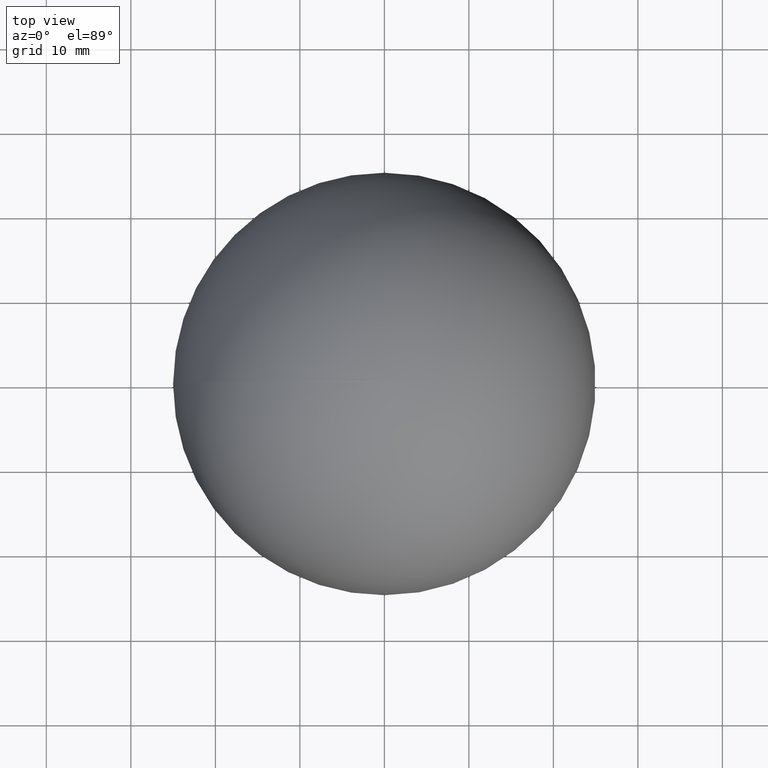
[diagram: clean part render]
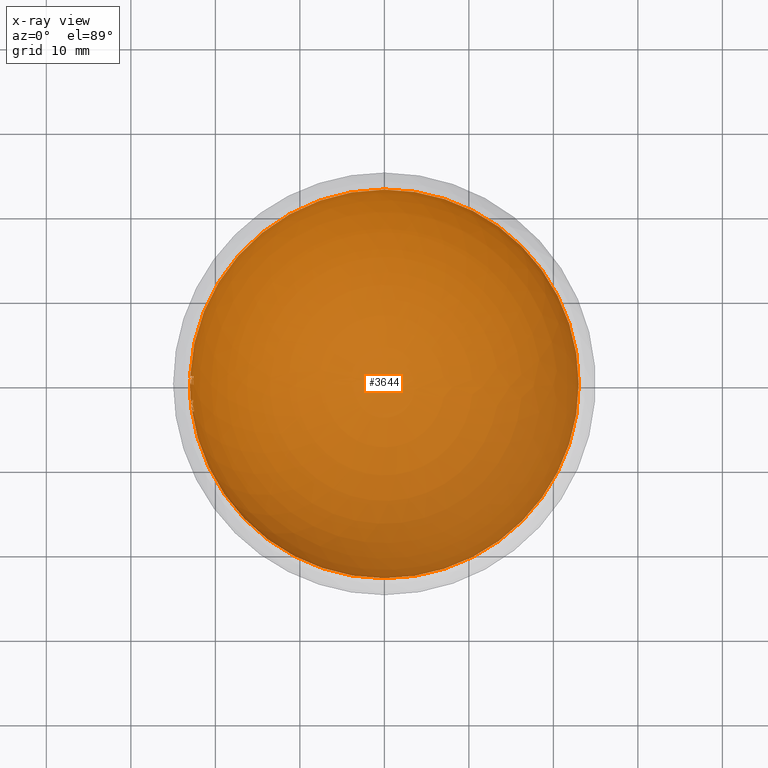
[diagram: x-ray — body ghosted, one internal face saturated and labeled with its STEP entity id]
A machine part, top view, then the same camera in x-ray: the body is ghosted and one INTERNAL B-rep face — a face not visible from any outside direction — is saturated and labeled: STEP entity #3644.
In plain terms, the highlighted spherical surface has radius 23 mm.
Its self-contained STEP definition (entity closure, byte-faithful):
#12 = CARTESIAN_POINT ( 'NONE',  ( -22.98922751621350000, 0.0000000000000000000, -0.7038595085470088500 ) ) ;
#20 = CARTESIAN_POINT ( 'NONE',  ( -22.81328867206308800, -1.881944444444444900, -2.238782051282053300 ) ) ;
#33 = DIRECTION ( 'NONE',  ( 1.000000000000000000, 0.0000000000000000000, 0.0000000000000000000 ) ) ;
#57 = CIRCLE ( 'NONE', #4603, 22.97437169311817200 ) ;
#62 = CARTESIAN_POINT ( 'NONE',  ( -22.97868845462385700, 0.9385943670414580400, -0.3166896500126257800 ) ) ;
#63 = CIRCLE ( 'NONE', #241, 23.00000000000000000 ) ;
#65 = CARTESIAN_POINT ( 'NONE',  ( -22.97882788217313900, 0.8649839743589744500, -0.4746281550480772000 ) ) ;
#85 = CARTESIAN_POINT ( 'NONE',  ( -22.98845095991574500, 0.7298655852635279600, -0.02532903681091298500 ) ) ;
#92 = DIRECTION ( 'NONE',  ( -0.0000000000000000000, -0.0000000000000000000, 1.000000000000000000 ) ) ;
#98 = CARTESIAN_POINT ( 'NONE',  ( -22.61122120483362300, 0.7803802900003935500, -4.138178450144580200 ) ) ;
#123 = DIRECTION ( 'NONE',  ( 1.000000000000000000, 0.0000000000000000000, 0.0000000000000000000 ) ) ;
#148 = CARTESIAN_POINT ( 'NONE',  ( -22.96573097838329900, 0.08340179890933531500, -1.254043916177838300 ) ) ;
#153 = B_SPLINE_CURVE_WITH_KNOTS ( 'NONE', 3,
 ( #4961, #8640, #2746, #1904, #387, #7884, #2654, #1224, #9289, #4173, #8607, #4871 ),
 .UNSPECIFIED., .F., .F.,
 ( 4, 2, 2, 2, 2, 4 ),
 ( 0.0000000000000000000, 0.0001605931098113711000, 0.0003211862196227421900, 0.0004817793294341133400, 0.0005620758843397988600, 0.0006423724392454842700 ),
 .UNSPECIFIED. ) ;
#154 = DIRECTION ( 'NONE',  ( 0.0000000000000000000, 0.0000000000000000000, 1.000000000000000000 ) ) ;
#156 = EDGE_LOOP ( 'NONE', ( #4448, #3080, #676, #6927, #3230, #4353, #8424, #7824, #254, #8732, #980, #9528 ) ) ;
#165 = CARTESIAN_POINT ( 'NONE',  ( -22.97737084913838500, 0.8573790441255319000, -0.5539687449140969800 ) ) ;
#174 = EDGE_CURVE ( 'NONE', #8856, #9009, #9195, .T. ) ;
#185 = VERTEX_POINT ( 'NONE', #2142 ) ;
#187 = EDGE_CURVE ( 'NONE', #8636, #6186, #9412, .T. ) ;
#190 = DIRECTION ( 'NONE',  ( -0.0000000000000000000, -0.6928993320646521500, 0.7210343373407115400 ) ) ;
#193 = ORIENTED_EDGE ( 'NONE', *, *, #3688, .F. ) ;
#196 = CARTESIAN_POINT ( 'NONE',  ( -22.83302045262838600, -2.763888888888889300, -0.1187232905982907000 ) ) ;
#201 = VERTEX_POINT ( 'NONE', #1583 ) ;
#206 = CARTESIAN_POINT ( 'NONE',  ( -22.82635765114680000, -2.424679487179487700, -1.441639957264959200 ) ) ;
#213 = AXIS2_PLACEMENT_3D ( 'NONE', #7535, #995, #7568 ) ;
#225 = CARTESIAN_POINT ( 'NONE',  ( -22.97938697412726600, 0.6817928161793072000, -0.6960530263519401100 ) ) ;
#235 = CARTESIAN_POINT ( 'NONE',  ( -22.82462783835199000, -1.881944444444444900, -2.120058760683762900 ) ) ;
#237 = CIRCLE ( 'NONE', #7440, 22.97967364073313200 ) ;
#241 = AXIS2_PLACEMENT_3D ( 'NONE', #3932, #6128, #269 ) ;
#254 = ORIENTED_EDGE ( 'NONE', *, *, #769, .F. ) ;
#261 = DIRECTION ( 'NONE',  ( -1.000000000000000000, 3.907985046680551000E-014, 0.0000000000000000000 ) ) ;
#267 = CIRCLE ( 'NONE', #9524, 22.59133349013012500 ) ;
#268 = AXIS2_PLACEMENT_3D ( 'NONE', #6124, #1694, #5503 ) ;
#269 = DIRECTION ( 'NONE',  ( -1.000000000000000000, 0.0000000000000000000, -1.224646799147353200E-016 ) ) ;
#272 = DIRECTION ( 'NONE',  ( -1.000000000000000000, -5.773159728050815000E-013, 0.0000000000000000000 ) ) ;
#291 = CARTESIAN_POINT ( 'NONE',  ( -22.70748876595871800, 0.6089868790064102400, -3.605424929887822500 ) ) ;
#293 = VERTEX_POINT ( 'NONE', #6171 ) ;
#298 = DIRECTION ( 'NONE',  ( 0.0000000000000000000, 0.0000000000000000000, 1.000000000000000000 ) ) ;
#338 = ORIENTED_EDGE ( 'NONE', *, *, #1919, .F. ) ;
#372 = ORIENTED_EDGE ( 'NONE', *, *, #622, .F. ) ;
#375 = CARTESIAN_POINT ( 'NONE',  ( 0.0000000000000000000, -1.881944444444444900, 0.0000000000000000000 ) ) ;
#387 = CARTESIAN_POINT ( 'NONE',  ( -22.97286445124201000, 0.7897727938387506500, -0.7916008605070704600 ) ) ;
#390 = AXIS2_PLACEMENT_3D ( 'NONE', #9501, #3582, #1350 ) ;
#391 = VERTEX_POINT ( 'NONE', #1274 ) ;
#392 = DIRECTION ( 'NONE',  ( -0.0000000000000000000, -1.000000000000000000, 0.0000000000000000000 ) ) ;
#395 = ORIENTED_EDGE ( 'NONE', *, *, #7862, .F. ) ;
#410 = EDGE_CURVE ( 'NONE', #7972, #2513, #8495, .T. ) ;
#425 = CARTESIAN_POINT ( 'NONE',  ( 0.0000000000000000000, 0.0000000000000000000, -2.120058760683762900 ) ) ;
#430 = VERTEX_POINT ( 'NONE', #8590 ) ;
#433 = DIRECTION ( 'NONE',  ( 0.0000000000000000000, -0.6743193281498540700, 0.7384398714069612100 ) ) ;
#439 = AXIS2_PLACEMENT_3D ( 'NONE', #3468, #605, #8754 ) ;
#443 = EDGE_LOOP ( 'NONE', ( #7536, #3263, #6800, #7329, #1587, #4635, #6938, #7577, #7018, #8287, #4187, #4898 ) ) ;
#447 = CARTESIAN_POINT ( 'NONE',  ( 0.0000000000000000000, -2.628205128205128600, 0.0000000000000000000 ) ) ;
#450 = VERTEX_POINT ( 'NONE', #4158 ) ;
#453 = AXIS2_PLACEMENT_3D ( 'NONE', #4473, #1450, #33 ) ;
#457 = CARTESIAN_POINT ( 'NONE',  ( -22.60699884523615200, 0.5648567667358960200, -4.195776453120848800 ) ) ;
#481 = AXIS2_PLACEMENT_3D ( 'NONE', #1619, #3122, #4662 ) ;
#523 = CARTESIAN_POINT ( 'NONE',  ( -22.61205251050411700, 0.9586149713906839700, -4.095971885963654900 ) ) ;
#544 = DIRECTION ( 'NONE',  ( -0.0000000000000000000, -0.0000000000000000000, -1.000000000000000000 ) ) ;
#552 = VERTEX_POINT ( 'NONE', #7192 ) ;
#566 = CARTESIAN_POINT ( 'NONE',  ( -22.90383436850189700, 0.8180696018676393300, -1.935611127682349600 ) ) ;
#567 = CARTESIAN_POINT ( 'NONE',  ( 0.0000000000000000000, 0.9667467948717949300, 0.0000000000000000000 ) ) ;
#581 = CARTESIAN_POINT ( 'NONE',  ( -22.64449367390495000, 0.8649839743589744500, -3.934299045138890600 ) ) ;
#591 = CARTESIAN_POINT ( 'NONE',  ( -22.99636120664748200, 0.3760454226762820500, -0.1611244658119660400 ) ) ;
#605 = DIRECTION ( 'NONE',  ( 0.0000000000000000000, -0.0000000000000000000, -1.000000000000000000 ) ) ;
#610 = DIRECTION ( 'NONE',  ( 0.0000000000000000000, 0.0000000000000000000, 1.000000000000000000 ) ) ;
#619 = CARTESIAN_POINT ( 'NONE',  ( -22.98006007019606000, 0.8613563951209737300, -0.4191226105138306500 ) ) ;
#622 = EDGE_CURVE ( 'NONE', #9422, #7483, #9081, .T. ) ;
#633 = CARTESIAN_POINT ( 'NONE',  ( -22.81233129836332600, 0.9799530155749012200, -2.763789118541238200 ) ) ;
#640 = CARTESIAN_POINT ( 'NONE',  ( -22.67926475057327500, 0.9179006568243349700, -3.716142753968287000 ) ) ;
#652 = CARTESIAN_POINT ( 'NONE',  ( -22.97041834400408100, 0.4860234708867521300, -1.060029380341880100 ) ) ;
#660 = DIRECTION ( 'NONE',  ( -1.000000000000000000, 0.0000000000000000000, 0.0000000000000000000 ) ) ;
#676 = ORIENTED_EDGE ( 'NONE', *, *, #6174, .F. ) ;
#688 = DIRECTION ( 'NONE',  ( -0.0000000000000000000, -0.0000000000000000000, 1.000000000000000000 ) ) ;
#731 = DIRECTION ( 'NONE',  ( 0.0000000000000000000, 0.0000000000000000000, 1.000000000000000000 ) ) ;
#746 = CIRCLE ( 'NONE', #805, 22.99544080137008000 ) ;
#748 = EDGE_CURVE ( 'NONE', #7265, #391, #6398, .T. ) ;
#749 = VERTEX_POINT ( 'NONE', #2209 ) ;
#750 = CIRCLE ( 'NONE', #8334, 22.77671794131438100 ) ;
#769 = EDGE_CURVE ( 'NONE', #5578, #430, #4479, .T. ) ;
#770 = DIRECTION ( 'NONE',  ( -0.0000000000000000000, -1.000000000000000000, 0.0000000000000000000 ) ) ;
#793 = ORIENTED_EDGE ( 'NONE', *, *, #6058, .F. ) ;
#805 = AXIS2_PLACEMENT_3D ( 'NONE', #1010, #3989, #3207 ) ;
#820 = EDGE_CURVE ( 'NONE', #2396, #7338, #8370, .T. ) ;
#824 = CARTESIAN_POINT ( 'NONE',  ( -22.97013126902497100, 0.1767379071682231300, -1.160264871126289700 ) ) ;
#832 = EDGE_CURVE ( 'NONE', #201, #2022, #2262, .T. ) ;
#839 = CARTESIAN_POINT ( 'NONE',  ( -22.82011784317771200, 0.8591741016238199100, -2.739605499842100700 ) ) ;
#859 = ORIENTED_EDGE ( 'NONE', *, *, #1348, .F. ) ;
#862 = AXIS2_PLACEMENT_3D ( 'NONE', #3518, #5748, #6464 ) ;
#874 = CARTESIAN_POINT ( 'NONE',  ( -22.63604504627802100, 0.9837072649572650200, -3.954969618055557100 ) ) ;
#898 = DIRECTION ( 'NONE',  ( 1.000000000000000000, 0.0000000000000000000, 0.0000000000000000000 ) ) ;
#900 = CARTESIAN_POINT ( 'NONE',  ( 0.0000000000000000000, 0.0000000000000000000, -3.587139423076925100 ) ) ;
#921 = CARTESIAN_POINT ( 'NONE',  ( -22.92036697109836000, -1.881944444444444900, -0.3392094017094030600 ) ) ;
#929 = DIRECTION ( 'NONE',  ( 1.000000000000000000, 0.0000000000000000000, 0.0000000000000000000 ) ) ;
#931 = AXIS2_PLACEMENT_3D ( 'NONE', #2947, #8928, #8092 ) ;
#936 = CARTESIAN_POINT ( 'NONE',  ( -22.84207579915968700, 0.7689361832653152100, -2.578706110192210900 ) ) ;
#947 = VERTEX_POINT ( 'NONE', #6112 ) ;
#949 = DIRECTION ( 'NONE',  ( -0.0000000000000000000, -1.000000000000000000, 0.0000000000000000000 ) ) ;
#980 = ORIENTED_EDGE ( 'NONE', *, *, #8907, .F. ) ;
#987 = CIRCLE ( 'NONE', #3907, 22.90208180168885800 ) ;
#995 = DIRECTION ( 'NONE',  ( 1.224646799147353200E-016, -1.499759782661853000E-032, -1.000000000000000000 ) ) ;
#998 = CARTESIAN_POINT ( 'NONE',  ( -22.97805449633046100, 0.8638442303514504200, -0.5141482725706818500 ) ) ;
#1010 = CARTESIAN_POINT ( 'NONE',  ( 0.0000000000000000000, 0.0000000000000000000, -0.4579326923076936800 ) ) ;
#1029 = DIRECTION ( 'NONE',  ( 0.0000000000000000000, 0.0000000000000000000, -1.000000000000000000 ) ) ;
#1046 = AXIS2_PLACEMENT_3D ( 'NONE', #4437, #3725, #4363 ) ;
#1047 = CARTESIAN_POINT ( 'NONE',  ( -22.77136649201448300, 0.4937086838942307800, -3.197048611111110700 ) ) ;
#1051 = CARTESIAN_POINT ( 'NONE',  ( -22.92045496337390300, 0.1114429868750380800, -1.908332910370261100 ) ) ;
#1067 = DIRECTION ( 'NONE',  ( 0.0000000000000000000, 0.0000000000000000000, -1.000000000000000000 ) ) ;
#1077 = ORIENTED_EDGE ( 'NONE', *, *, #5697, .F. ) ;
#1090 = CARTESIAN_POINT ( 'NONE',  ( -22.71446853296199800, 0.4365025825385863100, -3.587471042284288400 ) ) ;
#1092 = CARTESIAN_POINT ( 'NONE',  ( 0.0000000000000000000, 0.0000000000000000000, 0.0000000000000000000 ) ) ;
#1100 = DIRECTION ( 'NONE',  ( -0.0000000000000000000, -0.0000000000000000000, 1.000000000000000000 ) ) ;
#1113 = CARTESIAN_POINT ( 'NONE',  ( -22.90287847139801200, 0.7878668369391025300, -1.958934294871794300 ) ) ;
#1122 = DIRECTION ( 'NONE',  ( 0.0000000000000000000, 1.000000000000000000, 0.0000000000000000000 ) ) ;
#1123 = CARTESIAN_POINT ( 'NONE',  ( -22.79306721836904600, 0.0000000000000000000, -3.078325320512820300 ) ) ;
#1124 = CARTESIAN_POINT ( 'NONE',  ( -22.71585898156574500, 0.3495446881677350400, -3.587139423076925100 ) ) ;
#1137 = CARTESIAN_POINT ( 'NONE',  ( -22.86455852094953700, 0.3495446881677350400, -2.467748397435897400 ) ) ;
#1151 = DIRECTION ( 'NONE',  ( -0.0000000000000000000, -1.000000000000000000, 0.0000000000000000000 ) ) ;
#1158 = DIRECTION ( 'NONE',  ( -0.0000000000000000000, -0.0000000000000000000, -1.000000000000000000 ) ) ;
#1160 = CARTESIAN_POINT ( 'NONE',  ( -22.78514664689315700, 0.6383476516000732300, -3.070821551434554000 ) ) ;
#1178 = ORIENTED_EDGE ( 'NONE', *, *, #4647, .F. ) ;
#1181 = CARTESIAN_POINT ( 'NONE',  ( 0.0000000000000000000, 0.0000000000000000000, -0.1187232905982907000 ) ) ;
#1183 = CARTESIAN_POINT ( 'NONE',  ( -22.58593811639716600, 0.4937086838942307800, -4.316439636752138900 ) ) ;
#1220 = ORIENTED_EDGE ( 'NONE', *, *, #6440, .F. ) ;
#1222 = ORIENTED_EDGE ( 'NONE', *, *, #1561, .F. ) ;
#1224 = CARTESIAN_POINT ( 'NONE',  ( -22.97146545524713800, 0.9589974557663467600, -0.6267520371825485700 ) ) ;
#1232 = VERTEX_POINT ( 'NONE', #3042 ) ;
#1236 = ORIENTED_EDGE ( 'NONE', *, *, #9426, .F. ) ;
#1240 = EDGE_CURVE ( 'NONE', #4118, #6991, #3531, .T. ) ;
#1245 = DIRECTION ( 'NONE',  ( -0.0000000000000000000, -0.0000000000000000000, -1.000000000000000000 ) ) ;
#1247 = CARTESIAN_POINT ( 'NONE',  ( -22.88555744551886000, 0.9667467948717949300, -2.077657585470085200 ) ) ;
#1255 = DIRECTION ( 'NONE',  ( 1.000000000000000000, 0.0000000000000000000, 0.0000000000000000000 ) ) ;
#1257 = EDGE_CURVE ( 'NONE', #8388, #4842, #4364, .T. ) ;
#1258 = CARTESIAN_POINT ( 'NONE',  ( -22.71641455350221200, 0.9667467948717949300, -3.468416132478634200 ) ) ;
#1259 = CARTESIAN_POINT ( 'NONE',  ( -22.78567342074632100, 0.6016473504940775800, -3.074320494004416200 ) ) ;
#1274 = CARTESIAN_POINT ( 'NONE',  ( -22.53378344946850100, -3.204861111111111200, -3.310206747462606000 ) ) ;
#1277 = B_SPLINE_CURVE_WITH_KNOTS ( 'NONE', 3,
 ( #5188, #9453, #633, #5788, #2876, #6508, #6065, #9008, #3129, #6778 ),
 .UNSPECIFIED., .F., .F.,
 ( 4, 2, 2, 2, 4 ),
 ( 0.0000000000000000000, 0.0001078834827523771900, 0.0002157669655047542700, 0.0003236504482571313700, 0.0004315339310095085300 ),
 .UNSPECIFIED. ) ;
#1282 = CIRCLE ( 'NONE', #3683, 22.92287689423002200 ) ;
#1285 = CARTESIAN_POINT ( 'NONE',  ( 0.0000000000000000000, 0.0000000000000000000, -3.587139423076925100 ) ) ;
#1290 = DIRECTION ( 'NONE',  ( -0.0000000000000000000, -0.0000000000000000000, -1.000000000000000000 ) ) ;
#1297 = ORIENTED_EDGE ( 'NONE', *, *, #3955, .F. ) ;
#1319 = CARTESIAN_POINT ( 'NONE',  ( -22.93457886820222300, 0.9725904253315648100, -1.436511567554516100 ) ) ;
#1320 = AXIS2_PLACEMENT_3D ( 'NONE', #5214, #7313, #5116 ) ;
#1348 = EDGE_CURVE ( 'NONE', #5903, #450, #3956, .T. ) ;
#1350 = DIRECTION ( 'NONE',  ( 0.0000000000000000000, 0.0000000000000000000, 1.000000000000000000 ) ) ;
#1355 = CARTESIAN_POINT ( 'NONE',  ( -22.97944147953880300, 0.8639882613092408900, -0.4467358518146932700 ) ) ;
#1357 = CARTESIAN_POINT ( 'NONE',  ( -22.92284690867984800, 0.9826572365914226800, -1.605906405310562500 ) ) ;
#1391 = B_SPLINE_CURVE_WITH_KNOTS ( 'NONE', 3,
 ( #2235, #85, #5884, #8163, #2879, #4414 ),
 .UNSPECIFIED., .F., .F.,
 ( 4, 2, 4 ),
 ( 0.0002177101826348911500, 0.0003578389134898871100, 0.0004979676443448829900 ),
 .UNSPECIFIED. ) ;
#1403 = CARTESIAN_POINT ( 'NONE',  ( -22.84903592242669700, -2.628205128205128600, -0.1187232905982907000 ) ) ;
#1416 = EDGE_LOOP ( 'NONE', ( #338, #3482, #7600, #5198, #5023, #7923, #1297, #1236, #4029, #1617, #3282, #9565, #3404, #7623, #2806, #1220, #4022, #6294, #2611 ) ) ;
#1429 = CARTESIAN_POINT ( 'NONE',  ( -22.81070133875477200, 0.8649839743589744500, -2.814908019497862800 ) ) ;
#1430 = DIRECTION ( 'NONE',  ( 0.0000000000000000000, 0.0000000000000000000, 1.000000000000000000 ) ) ;
#1447 = CIRCLE ( 'NONE', #6341, 22.77561997528251000 ) ;
#1449 = B_SPLINE_CURVE_WITH_KNOTS ( 'NONE', 3,
 ( #4237, #6310, #5566, #4836, #3389, #1872, #457, #5657, #8539, #4145 ),
 .UNSPECIFIED., .F., .F.,
 ( 4, 3, 3, 4 ),
 ( 0.0000000000000000000, 5.535511328179860900E-005, 0.0001105454065878597300, 0.0002205518947110948000 ),
 .UNSPECIFIED. ) ;
#1450 = DIRECTION ( 'NONE',  ( -0.0000000000000000000, -0.0000000000000000000, -1.000000000000000000 ) ) ;
#1455 = ORIENTED_EDGE ( 'NONE', *, *, #8799, .F. ) ;
#1481 = EDGE_CURVE ( 'NONE', #4549, #2396, #1447, .T. ) ;
#1492 = DIRECTION ( 'NONE',  ( 0.0000000000000000000, 1.000000000000000000, 0.0000000000000000000 ) ) ;
#1503 = CARTESIAN_POINT ( 'NONE',  ( -22.78767042169478400, 0.7800810992048563500, -3.019003551210033700 ) ) ;
#1519 = DIRECTION ( 'NONE',  ( 0.0000000000000000000, 0.0000000000000000000, 1.000000000000000000 ) ) ;
#1542 = CARTESIAN_POINT ( 'NONE',  ( -22.97154517253223500, 0.2314325265959672200, -1.122025415673749200 ) ) ;
#1544 = DIRECTION ( 'NONE',  ( 0.0000000000000000000, 0.0000000000000000000, -1.000000000000000000 ) ) ;
#1547 = AXIS2_PLACEMENT_3D ( 'NONE', #9094, #9058, #123 ) ;
#1561 = EDGE_CURVE ( 'NONE', #7747, #4156, #6170, .T. ) ;
#1566 = DIRECTION ( 'NONE',  ( -0.0000000000000000000, -1.000000000000000000, 0.0000000000000000000 ) ) ;
#1583 = CARTESIAN_POINT ( 'NONE',  ( -22.99943562147812400, 0.0000000000000000000, -0.1611244658119660400 ) ) ;
#1587 = ORIENTED_EDGE ( 'NONE', *, *, #1891, .F. ) ;
#1590 = CARTESIAN_POINT ( 'NONE',  ( 0.0000000000000000000, -3.204861111111111600, 0.0000000000000000000 ) ) ;
#1596 = EDGE_CURVE ( 'NONE', #2093, #6304, #5618, .T. ) ;
#1600 = DIRECTION ( 'NONE',  ( 0.0000000000000000000, 0.0000000000000000000, 1.000000000000000000 ) ) ;
#1613 = CARTESIAN_POINT ( 'NONE',  ( 0.0000000000000000000, 0.0000000000000000000, 0.0000000000000000000 ) ) ;
#1617 = ORIENTED_EDGE ( 'NONE', *, *, #6270, .F. ) ;
#1619 = CARTESIAN_POINT ( 'NONE',  ( 0.0000000000000000000, 0.0000000000000000000, -2.238782051282053300 ) ) ;
#1632 = CARTESIAN_POINT ( 'NONE',  ( -22.84587339800044200, 0.7417324377081689900, -2.552904868151637100 ) ) ;
#1640 = CIRCLE ( 'NONE', #2502, 22.77561997528251000 ) ;
#1644 = VERTEX_POINT ( 'NONE', #6595 ) ;
#1646 = VERTEX_POINT ( 'NONE', #8744 ) ;
#1647 = CIRCLE ( 'NONE', #268, 22.91133292556046900 ) ;
#1666 = CIRCLE ( 'NONE', #7720, 22.90208180168885800 ) ;
#1676 = EDGE_CURVE ( 'NONE', #1882, #3346, #7319, .T. ) ;
#1684 = FACE_OUTER_BOUND ( 'NONE', #1416, .T. ) ;
#1693 = ORIENTED_EDGE ( 'NONE', *, *, #748, .F. ) ;
#1694 = DIRECTION ( 'NONE',  ( -0.0000000000000000000, -1.000000000000000000, 0.0000000000000000000 ) ) ;
#1695 = CARTESIAN_POINT ( 'NONE',  ( 0.0000000000000000000, 0.0000000000000000000, -2.077657585470085200 ) ) ;
#1701 = DIRECTION ( 'NONE',  ( -0.0000000000000000000, -0.0000000000000000000, -1.000000000000000000 ) ) ;
#1710 = ORIENTED_EDGE ( 'NONE', *, *, #9400, .F. ) ;
#1716 = CARTESIAN_POINT ( 'NONE',  ( -22.85713828124889000, 0.6089868790064102400, -2.486033904246794700 ) ) ;
#1722 = CARTESIAN_POINT ( 'NONE',  ( 0.0000000000000000000, -1.881944444444444900, 0.0000000000000000000 ) ) ;
#1739 = CIRCLE ( 'NONE', #2439, 22.84934436267431200 ) ;
#1758 = CARTESIAN_POINT ( 'NONE',  ( -22.93610785474391600, 0.001794155838710206700, -1.713591249709683700 ) ) ;
#1762 = VERTEX_POINT ( 'NONE', #3726 ) ;
#1769 = DIRECTION ( 'NONE',  ( -1.000000000000000000, 0.0000000000000000000, -1.224646799147353200E-016 ) ) ;
#1795 = AXIS2_PLACEMENT_3D ( 'NONE', #3694, #1492, #4476 ) ;
#1822 = CARTESIAN_POINT ( 'NONE',  ( -22.78637703449457400, 0.9583899956367258900, -2.977138175403485100 ) ) ;
#1825 = EDGE_LOOP ( 'NONE', ( #2496, #3933, #1178, #2965, #8889, #5431, #793, #8827, #5368 ) ) ;
#1848 = DIRECTION ( 'NONE',  ( 0.0000000000000000000, 1.000000000000000000, 0.0000000000000000000 ) ) ;
#1852 = CARTESIAN_POINT ( 'NONE',  ( 0.0000000000000000000, -3.204861111111111600, 0.0000000000000000000 ) ) ;
#1853 = CIRCLE ( 'NONE', #8362, 22.70138308062047400 ) ;
#1863 = DIRECTION ( 'NONE',  ( 0.0000000000000000000, 0.0000000000000000000, -1.000000000000000000 ) ) ;
#1867 = CIRCLE ( 'NONE', #6017, 22.92287689423002200 ) ;
#1872 = CARTESIAN_POINT ( 'NONE',  ( -22.60668747255927600, 0.5832561668654822100, -4.194977119801262900 ) ) ;
#1882 = VERTEX_POINT ( 'NONE', #206 ) ;
#1891 = EDGE_CURVE ( 'NONE', #7443, #1762, #987, .T. ) ;
#1896 = DIRECTION ( 'NONE',  ( -0.0000000000000000000, -0.0000000000000000000, 1.000000000000000000 ) ) ;
#1904 = CARTESIAN_POINT ( 'NONE',  ( -22.97414113412612500, 0.7370397759960123400, -0.8052909559928629300 ) ) ;
#1919 = EDGE_CURVE ( 'NONE', #7690, #2093, #63, .T. ) ;
#1940 = CARTESIAN_POINT ( 'NONE',  ( -22.78782527058945500, 0.4914617817428923500, -3.078121644191667400 ) ) ;
#1958 = VERTEX_POINT ( 'NONE', #4739 ) ;
#1979 = DIRECTION ( 'NONE',  ( -1.000000000000000000, 2.735589532676385700E-013, 0.0000000000000000000 ) ) ;
#1999 = DIRECTION ( 'NONE',  ( 0.0000000000000000000, 0.0000000000000000000, -1.000000000000000000 ) ) ;
#2015 = ORIENTED_EDGE ( 'NONE', *, *, #7229, .F. ) ;
#2020 = EDGE_CURVE ( 'NONE', #2022, #2867, #6654, .T. ) ;
#2022 = VERTEX_POINT ( 'NONE', #8676 ) ;
#2034 = ORIENTED_EDGE ( 'NONE', *, *, #5493, .F. ) ;
#2037 = CARTESIAN_POINT ( 'NONE',  ( -22.92540893985800900, 0.9837072649572650200, -1.567783453525640700 ) ) ;
#2061 = CARTESIAN_POINT ( 'NONE',  ( -22.94852252076684700, 0.8859801513618340600, -1.258863742703265200 ) ) ;
#2064 = CARTESIAN_POINT ( 'NONE',  ( -22.99436288935243100, 0.4855203991315310000, -0.1629425480150914800 ) ) ;
#2078 = DIRECTION ( 'NONE',  ( 0.0000000000000000000, 0.0000000000000000000, -1.000000000000000000 ) ) ;
#2079 = CARTESIAN_POINT ( 'NONE',  ( 0.0000000000000000000, 0.0000000000000000000, 0.0000000000000000000 ) ) ;
#2089 = CARTESIAN_POINT ( 'NONE',  ( -22.99172100756578600, 0.5945716898358498500, -0.1739385956545878600 ) ) ;
#2090 = EDGE_CURVE ( 'NONE', #9324, #2652, #3238, .T. ) ;
#2093 = VERTEX_POINT ( 'NONE', #8443 ) ;
#2096 = CIRCLE ( 'NONE', #2978, 22.87183703563076200 ) ;
#2110 = VERTEX_POINT ( 'NONE', #1258 ) ;
#2111 = CIRCLE ( 'NONE', #3530, 23.00000000000000000 ) ;
#2117 = AXIS2_PLACEMENT_3D ( 'NONE', #5590, #7816, #1255 ) ;
#2142 = CARTESIAN_POINT ( 'NONE',  ( -22.64449367390495000, 0.8649839743589744500, -3.934299045138890600 ) ) ;
#2166 = CARTESIAN_POINT ( 'NONE',  ( -22.79667922562438400, 0.8533543246511635600, -2.930282118291924300 ) ) ;
#2182 = DIRECTION ( 'NONE',  ( -0.0000000000000000000, -1.000000000000000000, 0.0000000000000000000 ) ) ;
#2189 = CIRCLE ( 'NONE', #1320, 22.92287689423002200 ) ;
#2209 = CARTESIAN_POINT ( 'NONE',  ( -22.59133349013012500, 0.0000000000000000000, -4.316439636752138900 ) ) ;
#2220 = CARTESIAN_POINT ( 'NONE',  ( -22.77671794131438100, 0.0000000000000000000, -3.197048611111110700 ) ) ;
#2235 = CARTESIAN_POINT ( 'NONE',  ( -22.98712035026237600, 0.7696089932902230300, -2.843066087459059100E-015 ) ) ;
#2238 = CARTESIAN_POINT ( 'NONE',  ( -22.64237921223493900, 0.9825454640267296000, -3.919005348376663400 ) ) ;
#2242 = FACE_BOUND ( 'NONE', #443, .T. ) ;
#2262 = CIRCLE ( 'NONE', #1547, 22.99943562147812400 ) ;
#2266 = CARTESIAN_POINT ( 'NONE',  ( -22.98617469912439800, 0.7882015529455623800, -0.1270460324278186200 ) ) ;
#2271 = VERTEX_POINT ( 'NONE', #2314 ) ;
#2282 = B_SPLINE_CURVE_WITH_KNOTS ( 'NONE', 3,
 ( #8910, #5273, #6593, #8875, #98, #4505, #5237, #3792 ),
 .UNSPECIFIED., .F., .F.,
 ( 4, 2, 2, 4 ),
 ( 0.0000000000000000000, 0.0001718933065020623900, 0.0002578399597530943200, 0.0003437866130041263100 ),
 .UNSPECIFIED. ) ;
#2301 = DIRECTION ( 'NONE',  ( -0.0000000000000000000, -1.000000000000000000, 0.0000000000000000000 ) ) ;
#2314 = CARTESIAN_POINT ( 'NONE',  ( -22.83125696786186200, -2.560363247863248300, -1.085470085470086900 ) ) ;
#2340 = CIRCLE ( 'NONE', #5712, 22.99829730431888900 ) ;
#2363 = ORIENTED_EDGE ( 'NONE', *, *, #3547, .F. ) ;
#2379 = CARTESIAN_POINT ( 'NONE',  ( 0.0000000000000000000, 0.0000000000000000000, -0.4579326923076936800 ) ) ;
#2388 = EDGE_CURVE ( 'NONE', #6596, #2707, #746, .T. ) ;
#2396 = VERTEX_POINT ( 'NONE', #3217 ) ;
#2406 = CARTESIAN_POINT ( 'NONE',  ( -22.91581580529328100, 0.1672196347489316400, -1.958934294871794300 ) ) ;
#2439 = AXIS2_PLACEMENT_3D ( 'NONE', #447, #5676, #4919 ) ;
#2442 = EDGE_CURVE ( 'NONE', #947, #9293, #2477, .T. ) ;
#2449 = CIRCLE ( 'NONE', #8409, 23.00000000000000000 ) ;
#2457 = EDGE_CURVE ( 'NONE', #2859, #1646, #6156, .T. ) ;
#2464 = CARTESIAN_POINT ( 'NONE',  ( 0.0000000000000000000, -3.204861111111111600, 0.0000000000000000000 ) ) ;
#2477 = CIRCLE ( 'NONE', #7271, 22.90596732202197600 ) ;
#2481 = FACE_BOUND ( 'NONE', #1825, .T. ) ;
#2496 = ORIENTED_EDGE ( 'NONE', *, *, #8578, .F. ) ;
#2502 = AXIS2_PLACEMENT_3D ( 'NONE', #2464, #949, #7587 ) ;
#2505 = CARTESIAN_POINT ( 'NONE',  ( -22.92808236448536600, 0.04432366614234048400, -1.817273110921297600 ) ) ;
#2513 = VERTEX_POINT ( 'NONE', #4758 ) ;
#2530 = CARTESIAN_POINT ( 'NONE',  ( -22.76828948168584100, 0.7818678449254200500, -3.161810404815757400 ) ) ;
#2599 = ORIENTED_EDGE ( 'NONE', *, *, #7268, .F. ) ;
#2601 = EDGE_CURVE ( 'NONE', #9108, #6596, #7879, .T. ) ;
#2611 = ORIENTED_EDGE ( 'NONE', *, *, #1596, .F. ) ;
#2616 = VERTEX_POINT ( 'NONE', #2220 ) ;
#2617 = VERTEX_POINT ( 'NONE', #2971 ) ;
#2621 = CARTESIAN_POINT ( 'NONE',  ( -22.78702292017217000, 0.5281876957734622500, -3.077978605489741300 ) ) ;
#2632 = AXIS2_PLACEMENT_3D ( 'NONE', #567, #7959, #3556 ) ;
#2651 = ORIENTED_EDGE ( 'NONE', *, *, #6192, .F. ) ;
#2652 = VERTEX_POINT ( 'NONE', #874 ) ;
#2654 = CARTESIAN_POINT ( 'NONE',  ( -22.97104609380647500, 0.9205845888008584700, -0.6974546312450211600 ) ) ;
#2668 = CIRCLE ( 'NONE', #4125, 22.97437169311817200 ) ;
#2683 = AXIS2_PLACEMENT_3D ( 'NONE', #1722, #5469, #1067 ) ;
#2707 = VERTEX_POINT ( 'NONE', #4759 ) ;
#2746 = CARTESIAN_POINT ( 'NONE',  ( -22.97676773627222600, 0.6307795773753209800, -0.8204532431014054400 ) ) ;
#2755 = CARTESIAN_POINT ( 'NONE',  ( 4.225031457058359500E-015, 23.00000000000000000, 0.0000000000000000000 ) ) ;
#2769 = CARTESIAN_POINT ( 'NONE',  ( -22.65766170896508000, 0.8592079366261935500, -3.859214840400481800 ) ) ;
#2806 = ORIENTED_EDGE ( 'NONE', *, *, #3786, .F. ) ;
#2827 = CARTESIAN_POINT ( 'NONE',  ( 0.0000000000000000000, 0.9667467948717949300, 0.0000000000000000000 ) ) ;
#2834 = AXIS2_PLACEMENT_3D ( 'NONE', #9069, #3195, #1029 ) ;
#2838 = VERTEX_POINT ( 'NONE', #7608 ) ;
#2841 = DIRECTION ( 'NONE',  ( -1.000000000000000000, -8.881784197001252300E-014, 0.0000000000000000000 ) ) ;
#2843 = DIRECTION ( 'NONE',  ( 1.000000000000000000, 0.0000000000000000000, 0.0000000000000000000 ) ) ;
#2847 = ORIENTED_EDGE ( 'NONE', *, *, #3111, .F. ) ;
#2859 = VERTEX_POINT ( 'NONE', #7270 ) ;
#2867 = VERTEX_POINT ( 'NONE', #65 ) ;
#2869 = VERTEX_POINT ( 'NONE', #3756 ) ;
#2876 = CARTESIAN_POINT ( 'NONE',  ( -22.82592347778259900, 0.9509514826136594700, -2.659736991157082300 ) ) ;
#2879 = CARTESIAN_POINT ( 'NONE',  ( -22.99369213558287900, 0.5390617358596052600, -0.04229840894294310100 ) ) ;
#2882 = CARTESIAN_POINT ( 'NONE',  ( -22.69538987859149900, 0.8487327206572146100, -3.633217814449217500 ) ) ;
#2885 = CIRCLE ( 'NONE', #7731, 23.00000000000000000 ) ;
#2901 = VERTEX_POINT ( 'NONE', #6802 ) ;
#2912 = CARTESIAN_POINT ( 'NONE',  ( 0.0000000000000000000, 0.0000000000000000000, 0.0000000000000000000 ) ) ;
#2916 = CARTESIAN_POINT ( 'NONE',  ( -22.69671828230991300, -2.566458416800213800, -2.696714743589743600 ) ) ;
#2947 = CARTESIAN_POINT ( 'NONE',  ( 0.0000000000000000000, 0.0000000000000000000, -0.3392094017094030600 ) ) ;
#2959 = EDGE_CURVE ( 'NONE', #7244, #3131, #7539, .T. ) ;
#2965 = ORIENTED_EDGE ( 'NONE', *, *, #5553, .F. ) ;
#2971 = CARTESIAN_POINT ( 'NONE',  ( -22.69157363788309900, -1.881944444444444900, -3.248195028712606900 ) ) ;
#2978 = AXIS2_PLACEMENT_3D ( 'NONE', #6051, #7503, #1544 ) ;
#2981 = EDGE_CURVE ( 'NONE', #1232, #5578, #7649, .T. ) ;
#2983 = CARTESIAN_POINT ( 'NONE',  ( -22.78497216747155800, 0.6747087005876067900, -3.064279931223290500 ) ) ;
#2987 = DIRECTION ( 'NONE',  ( -0.0000000000000000000, -0.0000000000000000000, -1.000000000000000000 ) ) ;
#3005 = CIRCLE ( 'NONE', #5963, 22.98922751621350000 ) ;
#3006 = DIRECTION ( 'NONE',  ( -0.0000000000000000000, -0.0000000000000000000, -1.000000000000000000 ) ) ;
#3014 = CARTESIAN_POINT ( 'NONE',  ( -22.62924712240313600, -3.204861111111111600, -2.577991452991453200 ) ) ;
#3042 = CARTESIAN_POINT ( 'NONE',  ( -22.76844098934253300, -3.069177350427351000, -1.085470085470086900 ) ) ;
#3046 = VERTEX_POINT ( 'NONE', #4756 ) ;
#3058 = VERTEX_POINT ( 'NONE', #12 ) ;
#3059 = CARTESIAN_POINT ( 'NONE',  ( -22.97750079403038700, 0.9555595468621201900, -0.3503552015385480400 ) ) ;
#3080 = ORIENTED_EDGE ( 'NONE', *, *, #8655, .F. ) ;
#3111 = EDGE_CURVE ( 'NONE', #4842, #7747, #1277, .T. ) ;
#3118 = VERTEX_POINT ( 'NONE', #3859 ) ;
#3122 = DIRECTION ( 'NONE',  ( -0.0000000000000000000, -0.0000000000000000000, -1.000000000000000000 ) ) ;
#3129 = CARTESIAN_POINT ( 'NONE',  ( -22.85006919421635300, 0.8206565071484134300, -2.490418928827165000 ) ) ;
#3131 = VERTEX_POINT ( 'NONE', #4048 ) ;
#3148 = CARTESIAN_POINT ( 'NONE',  ( -22.93340628350227900, 0.01298608773434999400, -1.749318340676298400 ) ) ;
#3164 = AXIS2_PLACEMENT_3D ( 'NONE', #7859, #6289, #7124 ) ;
#3188 = DIRECTION ( 'NONE',  ( -0.0000000000000000000, -0.0000000000000000000, -1.000000000000000000 ) ) ;
#3195 = DIRECTION ( 'NONE',  ( 0.0000000000000000000, 1.000000000000000000, 0.0000000000000000000 ) ) ;
#3199 = CARTESIAN_POINT ( 'NONE',  ( -22.78853030123033800, 0.4547526041666666900, -3.078325320512820300 ) ) ;
#3207 = DIRECTION ( 'NONE',  ( 1.000000000000000000, 0.0000000000000000000, 0.0000000000000000000 ) ) ;
#3217 = CARTESIAN_POINT ( 'NONE',  ( -22.66531976799235100, -3.204861111111111600, -2.238782051282053300 ) ) ;
#3230 = ORIENTED_EDGE ( 'NONE', *, *, #2388, .F. ) ;
#3238 = B_SPLINE_CURVE_WITH_KNOTS ( 'NONE', 3,
 ( #4236, #4201, #8572, #4897, #6338, #4172, #4959, #523, #5626, #4928, #6308, #4144 ),
 .UNSPECIFIED., .F., .F.,
 ( 4, 2, 2, 2, 2, 4 ),
 ( 0.0000000000000000000, 0.0001742025709792081500, 0.0003484051419584163000, 0.0005226077129376244300, 0.0006097089984272292800, 0.0006968102839168341300 ),
 .UNSPECIFIED. ) ;
#3249 = CIRCLE ( 'NONE', #213, 23.00000000000000000 ) ;
#3256 = CARTESIAN_POINT ( 'NONE',  ( -22.98080680948914200, 0.9394244966666963600, 9.106697384881278700E-012 ) ) ;
#3263 = ORIENTED_EDGE ( 'NONE', *, *, #7928, .F. ) ;
#3264 = CARTESIAN_POINT ( 'NONE',  ( 0.0000000000000000000, -2.560363247863248300, 0.0000000000000000000 ) ) ;
#3268 = CARTESIAN_POINT ( 'NONE',  ( -22.79977050964046000, 0.9826384147861044700, -2.864566380935213100 ) ) ;
#3276 = EDGE_CURVE ( 'NONE', #4094, #8708, #3281, .T. ) ;
#3281 = CIRCLE ( 'NONE', #8210, 22.77561997528251000 ) ;
#3282 = ORIENTED_EDGE ( 'NONE', *, *, #2020, .F. ) ;
#3304 = ORIENTED_EDGE ( 'NONE', *, *, #8894, .F. ) ;
#3317 = VERTEX_POINT ( 'NONE', #6730 ) ;
#3324 = VERTEX_POINT ( 'NONE', #6056 ) ;
#3331 = DIRECTION ( 'NONE',  ( 1.000000000000000000, 0.0000000000000000000, 0.0000000000000000000 ) ) ;
#3336 = CARTESIAN_POINT ( 'NONE',  ( -22.77136649201448300, 0.4937086838942307800, -3.197048611111110700 ) ) ;
#3337 = EDGE_CURVE ( 'NONE', #3772, #7244, #7821, .T. ) ;
#3346 = VERTEX_POINT ( 'NONE', #3821 ) ;
#3351 = DIRECTION ( 'NONE',  ( 0.0000000000000000000, 1.000000000000000000, 0.0000000000000000000 ) ) ;
#3353 = CARTESIAN_POINT ( 'NONE',  ( -22.91581580529328100, 0.1672196347489316400, -1.958934294871794300 ) ) ;
#3389 = CARTESIAN_POINT ( 'NONE',  ( -22.60644035765183400, 0.6016429306921142800, -4.193711889685667800 ) ) ;
#3404 = ORIENTED_EDGE ( 'NONE', *, *, #8152, .F. ) ;
#3448 = ORIENTED_EDGE ( 'NONE', *, *, #8352, .F. ) ;
#3452 = CARTESIAN_POINT ( 'NONE',  ( -22.78632888635548100, 0.5648630485567345300, -3.076385154563275200 ) ) ;
#3468 = CARTESIAN_POINT ( 'NONE',  ( 0.0000000000000000000, 0.0000000000000000000, 0.0000000000000000000 ) ) ;
#3475 = CIRCLE ( 'NONE', #4354, 22.99969358013861500 ) ;
#3482 = ORIENTED_EDGE ( 'NONE', *, *, #6610, .T. ) ;
#3485 = CIRCLE ( 'NONE', #390, 23.00000000000000000 ) ;
#3503 = EDGE_CURVE ( 'NONE', #7338, #7443, #8699, .T. ) ;
#3507 = CARTESIAN_POINT ( 'NONE',  ( -22.65102530751505900, 0.8642786842319594200, -3.896860235933677300 ) ) ;
#3517 = CARTESIAN_POINT ( 'NONE',  ( -22.70748876595871800, 0.6089868790064102400, -3.605424929887822500 ) ) ;
#3518 = CARTESIAN_POINT ( 'NONE',  ( 0.0000000000000000000, -2.763888888888889300, 0.0000000000000000000 ) ) ;
#3523 = CARTESIAN_POINT ( 'NONE',  ( -22.91322442193667900, 0.9523899027828729400, -1.754573408939949400 ) ) ;
#3526 = B_SPLINE_CURVE_WITH_KNOTS ( 'NONE', 3,
 ( #1429, #6575, #2166, #8860, #1503, #6653, #7391, #2983 ),
 .UNSPECIFIED., .F., .F.,
 ( 4, 2, 2, 4 ),
 ( 0.0000000000000000000, 0.0001711671361244001500, 0.0002567507041866007700, 0.0003423342722488013800 ),
 .UNSPECIFIED. ) ;
#3530 = AXIS2_PLACEMENT_3D ( 'NONE', #1613, #6758, #4745 ) ;
#3531 = CIRCLE ( 'NONE', #3714, 22.91642590868774600 ) ;
#3535 = CARTESIAN_POINT ( 'NONE',  ( 0.0000000000000000000, 0.0000000000000000000, -1.085470085470086900 ) ) ;
#3537 = CARTESIAN_POINT ( 'NONE',  ( -22.97041834400408100, 0.4860234708867521300, -1.060029380341880100 ) ) ;
#3547 = EDGE_CURVE ( 'NONE', #7934, #2616, #3995, .T. ) ;
#3553 = CARTESIAN_POINT ( 'NONE',  ( -22.98674769473750600, 0.7470744771006857500, -0.2332103468059704700 ) ) ;
#3556 = DIRECTION ( 'NONE',  ( 0.0000000000000000000, 0.0000000000000000000, -1.000000000000000000 ) ) ;
#3575 = AXIS2_PLACEMENT_3D ( 'NONE', #6024, #190, #5996 ) ;
#3582 = DIRECTION ( 'NONE',  ( -0.0000000000000000000, -1.000000000000000000, 0.0000000000000000000 ) ) ;
#3590 = CIRCLE ( 'NONE', #2632, 22.97967364073313200 ) ;
#3602 = AXIS2_PLACEMENT_3D ( 'NONE', #2079, #610, #9460 ) ;
#3604 = CARTESIAN_POINT ( 'NONE',  ( -22.86725228429875800, -2.424679487179487700, -0.4579326923076936800 ) ) ;
#3613 = CARTESIAN_POINT ( 'NONE',  ( -22.96892248452803300, 0.5526272108450290800, -1.061906250093938200 ) ) ;
#3619 = EDGE_CURVE ( 'NONE', #2271, #9108, #57, .T. ) ;
#3621 = CARTESIAN_POINT ( 'NONE',  ( -22.92540893985800900, 0.9837072649572650200, -1.567783453525640700 ) ) ;
#3622 = CARTESIAN_POINT ( 'NONE',  ( 0.0000000000000000000, 0.0000000000000000000, 0.0000000000000000000 ) ) ;
#3626 = VERTEX_POINT ( 'NONE', #5582 ) ;
#3639 = ORIENTED_EDGE ( 'NONE', *, *, #8685, .F. ) ;
#3644 = ADVANCED_FACE ( 'NONE', ( #1684, #2242, #5612, #2481, #4113, #3888, #6060 ), #4220, .F. ) ;
#3683 = AXIS2_PLACEMENT_3D ( 'NONE', #4041, #3351, #7652 ) ;
#3688 = EDGE_CURVE ( 'NONE', #2616, #8388, #750, .T. ) ;
#3694 = CARTESIAN_POINT ( 'NONE',  ( 0.0000000000000000000, -2.424679487179487700, 0.0000000000000000000 ) ) ;
#3698 = CARTESIAN_POINT ( 'NONE',  ( 0.0000000000000000000, 0.0000000000000000000, -2.349025106837606500 ) ) ;
#3714 = AXIS2_PLACEMENT_3D ( 'NONE', #8353, #4711, #272 ) ;
#3725 = DIRECTION ( 'NONE',  ( -0.0000000000000000000, -0.0000000000000000000, -1.000000000000000000 ) ) ;
#3726 = CARTESIAN_POINT ( 'NONE',  ( -22.77336778422767700, -2.424679487179487700, -2.120058760683762900 ) ) ;
#3730 = CARTESIAN_POINT ( 'NONE',  ( 0.0000000000000000000, 0.0000000000000000000, -0.7038595085470088500 ) ) ;
#3733 = CARTESIAN_POINT ( 'NONE',  ( -22.98733008517106700, 0.7502357939369659300, -0.1407189002403848300 ) ) ;
#3753 = CIRCLE ( 'NONE', #8154, 22.96192264365193500 ) ;
#3756 = CARTESIAN_POINT ( 'NONE',  ( -22.70472588325064200, 0.7923719618055555800, -3.587139423076925100 ) ) ;
#3769 = DIRECTION ( 'NONE',  ( -1.000000000000000000, -4.707345624410664400E-014, 0.0000000000000000000 ) ) ;
#3772 = VERTEX_POINT ( 'NONE', #8821 ) ;
#3777 = B_SPLINE_CURVE_WITH_KNOTS ( 'NONE', 3,
 ( #4986, #4230, #7106, #8565, #9398, #9364, #7161, #2769, #3507, #581 ),
 .UNSPECIFIED., .F., .F.,
 ( 4, 2, 2, 2, 4 ),
 ( 0.0000000000000000000, 0.0001122698743422018800, 0.0002245397486844037500, 0.0003368096230266056600, 0.0004490794973688075000 ),
 .UNSPECIFIED. ) ;
#3786 = EDGE_CURVE ( 'NONE', #6149, #7972, #1391, .T. ) ;
#3792 = CARTESIAN_POINT ( 'NONE',  ( -22.60623067859923900, 0.6747087005876067900, -4.183670956864318700 ) ) ;
#3798 = CARTESIAN_POINT ( 'NONE',  ( -22.83377695126514000, 0.8154450669477963900, -2.637251287590420800 ) ) ;
#3801 = VERTEX_POINT ( 'NONE', #3014 ) ;
#3810 = CARTESIAN_POINT ( 'NONE',  ( -22.94675111853749900, -0.01696047008547008400, -1.564073350694444200 ) ) ;
#3814 = CARTESIAN_POINT ( 'NONE',  ( 0.0000000000000000000, 0.0000000000000000000, -4.197716346153848500 ) ) ;
#3821 = CARTESIAN_POINT ( 'NONE',  ( -22.87749897479271500, -1.881944444444444900, -1.441639957264959200 ) ) ;
#3825 = CARTESIAN_POINT ( 'NONE',  ( -22.97693259273504700, 0.8205232340885398900, -0.6235876728355824700 ) ) ;
#3834 = EDGE_CURVE ( 'NONE', #4692, #8856, #9287, .T. ) ;
#3847 = DIRECTION ( 'NONE',  ( -0.0000000000000000000, -1.000000000000000000, 0.0000000000000000000 ) ) ;
#3859 = CARTESIAN_POINT ( 'NONE',  ( -22.91642590868774600, 0.0000000000000000000, -1.958934294871794300 ) ) ;
#3888 = FACE_BOUND ( 'NONE', #156, .T. ) ;
#3891 = EDGE_CURVE ( 'NONE', #5936, #3626, #3526, .T. ) ;
#3906 = DIRECTION ( 'NONE',  ( 1.000000000000000000, 0.0000000000000000000, 0.0000000000000000000 ) ) ;
#3907 = AXIS2_PLACEMENT_3D ( 'NONE', #8317, #6903, #3994 ) ;
#3932 = CARTESIAN_POINT ( 'NONE',  ( 0.0000000000000000000, 0.0000000000000000000, 0.0000000000000000000 ) ) ;
#3933 = ORIENTED_EDGE ( 'NONE', *, *, #2442, .F. ) ;
#3947 = CIRCLE ( 'NONE', #6557, 22.71854816574790100 ) ;
#3955 = EDGE_CURVE ( 'NONE', #5586, #3046, #8118, .T. ) ;
#3956 = B_SPLINE_CURVE_WITH_KNOTS ( 'NONE', 3,
 ( #9151, #7572, #6092, #1716 ),
 .UNSPECIFIED., .F., .F.,
 ( 4, 4 ),
 ( 5.421010862427522200E-020, 0.0002608652066877719800 ),
 .UNSPECIFIED. ) ;
#3989 = DIRECTION ( 'NONE',  ( -0.0000000000000000000, -0.0000000000000000000, -1.000000000000000000 ) ) ;
#3994 = DIRECTION ( 'NONE',  ( -1.000000000000000000, 0.0000000000000000000, 0.0000000000000000000 ) ) ;
#3995 = CIRCLE ( 'NONE', #8026, 23.00000000000000000 ) ;
#4022 = ORIENTED_EDGE ( 'NONE', *, *, #9295, .F. ) ;
#4029 = ORIENTED_EDGE ( 'NONE', *, *, #8630, .F. ) ;
#4041 = CARTESIAN_POINT ( 'NONE',  ( 0.0000000000000000000, -1.881944444444444900, 0.0000000000000000000 ) ) ;
#4048 = CARTESIAN_POINT ( 'NONE',  ( -22.98080680948914200, 0.9394244966666963600, 9.106697384881278700E-012 ) ) ;
#4083 = DIRECTION ( 'NONE',  ( -0.0000000000000000000, -0.0000000000000000000, 1.000000000000000000 ) ) ;
#4092 = CARTESIAN_POINT ( 'NONE',  ( -22.89716226525842300, -1.881944444444444900, -1.085470085470086900 ) ) ;
#4094 = VERTEX_POINT ( 'NONE', #4152 ) ;
#4097 = AXIS2_PLACEMENT_3D ( 'NONE', #375, #1122, #1863 ) ;
#4110 = ORIENTED_EDGE ( 'NONE', *, *, #6931, .F. ) ;
#4113 = FACE_BOUND ( 'NONE', #5024, .T. ) ;
#4118 = VERTEX_POINT ( 'NONE', #4970 ) ;
#4125 = AXIS2_PLACEMENT_3D ( 'NONE', #6337, #1158, #3331 ) ;
#4144 = CARTESIAN_POINT ( 'NONE',  ( -22.63604504627802100, 0.9837072649572650200, -3.954969618055557100 ) ) ;
#4145 = CARTESIAN_POINT ( 'NONE',  ( -22.60912155627096700, 0.4547526041666666900, -4.197716346153848500 ) ) ;
#4152 = CARTESIAN_POINT ( 'NONE',  ( -22.73716685850598700, -3.204861111111111600, -1.322916666666668700 ) ) ;
#4156 = VERTEX_POINT ( 'NONE', #8517 ) ;
#4158 = CARTESIAN_POINT ( 'NONE',  ( -22.85713828124889000, 0.6089868790064102400, -2.486033904246794700 ) ) ;
#4161 = ORIENTED_EDGE ( 'NONE', *, *, #7566, .F. ) ;
#4172 = CARTESIAN_POINT ( 'NONE',  ( -22.59290281239317700, 0.8799301402238777200, -4.217801128628592800 ) ) ;
#4173 = CARTESIAN_POINT ( 'NONE',  ( -22.97251427213719700, 0.9810014569636815700, -0.5494871230182981600 ) ) ;
#4187 = ORIENTED_EDGE ( 'NONE', *, *, #6731, .F. ) ;
#4201 = CARTESIAN_POINT ( 'NONE',  ( -22.58469810039686700, 0.5519328413107347200, -4.316268466170591900 ) ) ;
#4220 = SPHERICAL_SURFACE ( 'NONE', #439, 23.00000000000000000 ) ;
#4230 = CARTESIAN_POINT ( 'NONE',  ( -22.70483832114926100, 0.6452612382651205000, -3.615990768212960400 ) ) ;
#4236 = CARTESIAN_POINT ( 'NONE',  ( -22.58593811639716600, 0.4937086838942307800, -4.316439636752138900 ) ) ;
#4237 = CARTESIAN_POINT ( 'NONE',  ( -22.60623067859923900, 0.6747087005876067900, -4.183670956864318700 ) ) ;
#4276 = CARTESIAN_POINT ( 'NONE',  ( -22.91543605929891900, 0.9643887205167712700, -1.718783156573017800 ) ) ;
#4289 = AXIS2_PLACEMENT_3D ( 'NONE', #3698, #8085, #3769 ) ;
#4295 = DIRECTION ( 'NONE',  ( 1.000000000000000000, 0.0000000000000000000, 0.0000000000000000000 ) ) ;
#4298 = B_SPLINE_CURVE_WITH_KNOTS ( 'NONE', 3,
 ( #3537, #6048, #7500, #1542, #824, #148, #7394, #6656, #8134, #3810 ),
 .UNSPECIFIED., .F., .F.,
 ( 4, 2, 2, 2, 4 ),
 ( 0.0000000000000000000, 0.0001969658572443126300, 0.0003939317144886252500, 0.0005908975717329378500, 0.0007878634289772505100 ),
 .UNSPECIFIED. ) ;
#4302 = DIRECTION ( 'NONE',  ( 1.000000000000000000, 0.0000000000000000000, 0.0000000000000000000 ) ) ;
#4314 = DIRECTION ( 'NONE',  ( 1.000000000000000000, 0.0000000000000000000, 0.0000000000000000000 ) ) ;
#4338 = CARTESIAN_POINT ( 'NONE',  ( -22.90287847139801200, 0.7878668369391025300, -1.958934294871794300 ) ) ;
#4353 = ORIENTED_EDGE ( 'NONE', *, *, #2601, .F. ) ;
#4354 = AXIS2_PLACEMENT_3D ( 'NONE', #1181, #1245, #7810 ) ;
#4363 = DIRECTION ( 'NONE',  ( 1.000000000000000000, 0.0000000000000000000, 0.0000000000000000000 ) ) ;
#4364 = B_SPLINE_CURVE_WITH_KNOTS ( 'NONE', 3,
 ( #3336, #6316, #6251, #9261, #2530, #5474, #6222, #1822, #7671, #5510, #3268, #6282 ),
 .UNSPECIFIED., .F., .F.,
 ( 4, 2, 2, 2, 2, 4 ),
 ( 0.0000000000000000000, 0.0001737719248337856400, 0.0003475438496675712900, 0.0005213157745013569900, 0.0006082017369182503300, 0.0006950876993351435500 ),
 .UNSPECIFIED. ) ;
#4406 = CIRCLE ( 'NONE', #5111, 22.79306721836904600 ) ;
#4413 = CIRCLE ( 'NONE', #8169, 22.97967364073313200 ) ;
#4414 = CARTESIAN_POINT ( 'NONE',  ( -22.99470684231437900, 0.4915886251335469500, -0.04240117521367545200 ) ) ;
#4417 = CARTESIAN_POINT ( 'NONE',  ( -22.66114820602682300, 0.9636004409685304800, -3.813810263303059500 ) ) ;
#4430 = CARTESIAN_POINT ( 'NONE',  ( -22.84606495828111900, -2.424679487179487700, -1.085470085470086900 ) ) ;
#4437 = CARTESIAN_POINT ( 'NONE',  ( 0.0000000000000000000, 0.0000000000000000000, -1.441639957264959200 ) ) ;
#4443 = CARTESIAN_POINT ( 'NONE',  ( 0.0000000000000000000, 0.0000000000000000000, -2.577991452991453200 ) ) ;
#4448 = ORIENTED_EDGE ( 'NONE', *, *, #3834, .F. ) ;
#4450 = CIRCLE ( 'NONE', #3164, 22.71963803426005100 ) ;
#4473 = CARTESIAN_POINT ( 'NONE',  ( 0.0000000000000000000, 0.0000000000000000000, -1.085470085470086900 ) ) ;
#4476 = DIRECTION ( 'NONE',  ( 0.0000000000000000000, 0.0000000000000000000, -1.000000000000000000 ) ) ;
#4479 = CIRCLE ( 'NONE', #8011, 22.99544080137008000 ) ;
#4490 = B_SPLINE_CURVE_WITH_KNOTS ( 'NONE', 3,
 ( #6083, #6820, #7590, #1758, #3148, #2505, #7642, #1051, #9118, #2406 ),
 .UNSPECIFIED., .F., .F.,
 ( 4, 2, 2, 2, 4 ),
 ( 0.0000000000000000000, 0.0001132582039602371600, 0.0002265164079204743200, 0.0003397746118807115100, 0.0004530328158409486400 ),
 .UNSPECIFIED. ) ;
#4505 = CARTESIAN_POINT ( 'NONE',  ( -22.60751310100212300, 0.7305312082617770900, -4.167434966253568800 ) ) ;
#4515 = CARTESIAN_POINT ( 'NONE',  ( -22.98265642683933100, 0.8914641403452624500, -0.06637959316802713400 ) ) ;
#4518 = EDGE_CURVE ( 'NONE', #4779, #1958, #4298, .T. ) ;
#4531 = CARTESIAN_POINT ( 'NONE',  ( -22.98733008517106700, 0.7502357939369659300, -0.1407189002403848300 ) ) ;
#4549 = VERTEX_POINT ( 'NONE', #5039 ) ;
#4603 = AXIS2_PLACEMENT_3D ( 'NONE', #3535, #544, #4314 ) ;
#4635 = ORIENTED_EDGE ( 'NONE', *, *, #3503, .F. ) ;
#4636 = CARTESIAN_POINT ( 'NONE',  ( -22.97535306119006300, 0.9783285102776767600, -0.4212013700766209000 ) ) ;
#4647 = EDGE_CURVE ( 'NONE', #3118, #947, #2111, .T. ) ;
#4662 = DIRECTION ( 'NONE',  ( 1.000000000000000000, 0.0000000000000000000, 0.0000000000000000000 ) ) ;
#4684 = VERTEX_POINT ( 'NONE', #6907 ) ;
#4692 = VERTEX_POINT ( 'NONE', #921 ) ;
#4698 = CARTESIAN_POINT ( 'NONE',  ( -22.97709836984713800, 0.7922816953966108600, -0.6533199362456182400 ) ) ;
#4711 = DIRECTION ( 'NONE',  ( -0.0000000000000000000, -0.0000000000000000000, 1.000000000000000000 ) ) ;
#4725 = CARTESIAN_POINT ( 'NONE',  ( -22.71284287830912200, 0.5240955163763673100, -3.586042826134579800 ) ) ;
#4739 = CARTESIAN_POINT ( 'NONE',  ( -22.94675111853749900, -0.01696047008547008400, -1.564073350694444200 ) ) ;
#4745 = DIRECTION ( 'NONE',  ( 0.0000000000000000000, 0.0000000000000000000, 1.000000000000000000 ) ) ;
#4755 = CARTESIAN_POINT ( 'NONE',  ( -22.71854816574790100, 0.0000000000000000000, -3.587139423076925100 ) ) ;
#4756 = CARTESIAN_POINT ( 'NONE',  ( -22.97931990918430100, 0.5236545138888890600, -0.8225827991452993000 ) ) ;
#4758 = CARTESIAN_POINT ( 'NONE',  ( -22.99996091606115200, 0.0000000000000000000, -0.04240117521367545200 ) ) ;
#4759 = CARTESIAN_POINT ( 'NONE',  ( -22.90675607927030200, -2.017628205128205700, -0.4579326923076936800 ) ) ;
#4763 = DIRECTION ( 'NONE',  ( -0.0000000000000000000, -1.000000000000000000, 0.0000000000000000000 ) ) ;
#4776 = B_SPLINE_CURVE_WITH_KNOTS ( 'NONE', 3,
 ( #7819, #7848, #1160, #7114, #1259, #7020, #3452, #2621, #1940, #9316 ),
 .UNSPECIFIED., .F., .F.,
 ( 4, 3, 3, 4 ),
 ( 0.0000000000000000000, 5.535349461308734800E-005, 0.0001105445429792626300, 0.0002205609690665548800 ),
 .UNSPECIFIED. ) ;
#4779 = VERTEX_POINT ( 'NONE', #5544 ) ;
#4795 = CARTESIAN_POINT ( 'NONE',  ( 0.0000000000000000000, 0.0000000000000000000, -3.468416132478634200 ) ) ;
#4835 = CARTESIAN_POINT ( 'NONE',  ( 0.0000000000000000000, 0.9667467948717949300, 0.0000000000000000000 ) ) ;
#4836 = CARTESIAN_POINT ( 'NONE',  ( -22.60626164889651300, 0.6199783152907808500, -4.191963877492325400 ) ) ;
#4842 = VERTEX_POINT ( 'NONE', #5664 ) ;
#4843 = DIRECTION ( 'NONE',  ( 1.000000000000000000, 0.0000000000000000000, 0.0000000000000000000 ) ) ;
#4848 = ORIENTED_EDGE ( 'NONE', *, *, #5717, .F. ) ;
#4854 = DIRECTION ( 'NONE',  ( -0.0000000000000000000, 0.6929516293246059700, -0.7209840770893445300 ) ) ;
#4864 = CARTESIAN_POINT ( 'NONE',  ( -22.88560532560633100, -2.017628205128205700, -1.085470085470086900 ) ) ;
#4871 = CARTESIAN_POINT ( 'NONE',  ( -22.97361528334072700, 0.9837072649572650200, -0.4952987279647437200 ) ) ;
#4883 = CARTESIAN_POINT ( 'NONE',  ( 0.0000000000000000000, 0.1939288023721396600, -0.2017739372885173900 ) ) ;
#4885 = CIRCLE ( 'NONE', #5896, 22.85506421054867600 ) ;
#4897 = CARTESIAN_POINT ( 'NONE',  ( -22.58341571608228900, 0.7251772695709619600, -4.297306148304593300 ) ) ;
#4898 = ORIENTED_EDGE ( 'NONE', *, *, #3276, .F. ) ;
#4911 = CIRCLE ( 'NONE', #6073, 22.77561997528251000 ) ;
#4913 = DIRECTION ( 'NONE',  ( -1.000000000000000000, 1.003641614261141500E-013, 0.0000000000000000000 ) ) ;
#4919 = DIRECTION ( 'NONE',  ( 0.0000000000000000000, 0.0000000000000000000, -1.000000000000000000 ) ) ;
#4928 = CARTESIAN_POINT ( 'NONE',  ( -22.62601803647014300, 0.9809766973110597400, -4.012708661644367700 ) ) ;
#4945 = DIRECTION ( 'NONE',  ( -0.0000000000000000000, -0.0000000000000000000, 1.000000000000000000 ) ) ;
#4946 = CARTESIAN_POINT ( 'NONE',  ( 0.0000000000000000000, 0.0000000000000000000, 0.0000000000000000000 ) ) ;
#4959 = CARTESIAN_POINT ( 'NONE',  ( -22.59968509010436900, 0.9191398225442825000, -4.172865224498321100 ) ) ;
#4961 = CARTESIAN_POINT ( 'NONE',  ( -22.97931990918430100, 0.5236545138888890600, -0.8225827991452993000 ) ) ;
#4966 = CARTESIAN_POINT ( 'NONE',  ( 0.0000000000000000000, 0.0000000000000000000, -2.467748397435897400 ) ) ;
#4970 = CARTESIAN_POINT ( 'NONE',  ( -22.89602535513489900, 0.9667467948717949300, -1.958934294871794300 ) ) ;
#4986 = CARTESIAN_POINT ( 'NONE',  ( -22.70748876595871800, 0.6089868790064102400, -3.605424929887822500 ) ) ;
#4993 = CARTESIAN_POINT ( 'NONE',  ( -22.93000223293011400, 0.9818177402259361500, -1.501802158327955100 ) ) ;
#5010 = AXIS2_PLACEMENT_3D ( 'NONE', #6515, #7910, #8006 ) ;
#5018 = DIRECTION ( 'NONE',  ( -1.000000000000000000, -3.552713678800500900E-015, 0.0000000000000000000 ) ) ;
#5023 = ORIENTED_EDGE ( 'NONE', *, *, #3337, .F. ) ;
#5024 = EDGE_LOOP ( 'NONE', ( #1077, #1710, #1222, #2847, #9034, #193, #2363, #9388, #4161, #5090, #5740, #859, #4848, #5066 ) ) ;
#5031 = EDGE_LOOP ( 'NONE', ( #1455, #2015, #395, #2599, #8117, #9374, #7216, #6497, #5192, #2651, #7912, #8073, #8878, #8830 ) ) ;
#5039 = CARTESIAN_POINT ( 'NONE',  ( -22.67673292407298300, -3.204861111111111600, -2.120058760683762900 ) ) ;
#5051 = CARTESIAN_POINT ( 'NONE',  ( -22.98236897470053800, 0.8339211417319075700, -0.3406574954027955500 ) ) ;
#5066 = ORIENTED_EDGE ( 'NONE', *, *, #5793, .F. ) ;
#5071 = CARTESIAN_POINT ( 'NONE',  ( -22.71642695088383900, -2.385723407451924200, -2.696714743589744500 ) ) ;
#5090 = ORIENTED_EDGE ( 'NONE', *, *, #3891, .F. ) ;
#5102 = EDGE_CURVE ( 'NONE', #430, #2271, #7643, .T. ) ;
#5104 = CARTESIAN_POINT ( 'NONE',  ( 0.0000000000000000000, -3.204861111111111600, 0.0000000000000000000 ) ) ;
#5111 = AXIS2_PLACEMENT_3D ( 'NONE', #9370, #5802, #5018 ) ;
#5116 = DIRECTION ( 'NONE',  ( 0.0000000000000000000, 0.0000000000000000000, -1.000000000000000000 ) ) ;
#5132 = CARTESIAN_POINT ( 'NONE',  ( -22.70014471345025000, 0.8207328439345880100, -3.609871139666199100 ) ) ;
#5151 = DIRECTION ( 'NONE',  ( -0.0000000000000000000, -0.0000000000000000000, 1.000000000000000000 ) ) ;
#5188 = CARTESIAN_POINT ( 'NONE',  ( -22.80332901273651200, 0.9837072649572650200, -2.835578592414529800 ) ) ;
#5192 = ORIENTED_EDGE ( 'NONE', *, *, #7651, .F. ) ;
#5198 = ORIENTED_EDGE ( 'NONE', *, *, #2959, .F. ) ;
#5201 = ORIENTED_EDGE ( 'NONE', *, *, #6123, .F. ) ;
#5214 = CARTESIAN_POINT ( 'NONE',  ( 0.0000000000000000000, -1.881944444444444900, 0.0000000000000000000 ) ) ;
#5237 = CARTESIAN_POINT ( 'NONE',  ( -22.60678295133885000, 0.7027822852057261600, -4.176159300935429600 ) ) ;
#5260 = CARTESIAN_POINT ( 'NONE',  ( -22.69796976370381000, 0.9667467948717949300, -3.587139423076925100 ) ) ;
#5273 = CARTESIAN_POINT ( 'NONE',  ( -22.63468547921424100, 0.8632990659653895200, -3.991122133272305900 ) ) ;
#5288 = EDGE_CURVE ( 'NONE', #3324, #6084, #6830, .T. ) ;
#5357 = EDGE_CURVE ( 'NONE', #8164, #4094, #3753, .T. ) ;
#5358 = DIRECTION ( 'NONE',  ( -1.000000000000000000, 1.065814103640150300E-014, 0.0000000000000000000 ) ) ;
#5368 = ORIENTED_EDGE ( 'NONE', *, *, #1240, .F. ) ;
#5374 = DIRECTION ( 'NONE',  ( 1.000000000000000000, 0.0000000000000000000, 0.0000000000000000000 ) ) ;
#5375 = ORIENTED_EDGE ( 'NONE', *, *, #7446, .F. ) ;
#5400 = CARTESIAN_POINT ( 'NONE',  ( -22.77309382232197900, -3.204861111111111600, -0.3392094017094030600 ) ) ;
#5405 = VERTEX_POINT ( 'NONE', #7470 ) ;
#5429 = B_SPLINE_CURVE_WITH_KNOTS ( 'NONE', 3,
 ( #2037, #4993, #1319, #6462, #2061, #8674, #8769, #7925, #3613, #652 ),
 .UNSPECIFIED., .F., .F.,
 ( 4, 2, 2, 2, 4 ),
 ( 0.0000000000000000000, 0.0001965323518347292600, 0.0003930647036694585200, 0.0005895970555041878100, 0.0007861294073389170400 ),
 .UNSPECIFIED. ) ;
#5431 = ORIENTED_EDGE ( 'NONE', *, *, #4518, .F. ) ;
#5469 = DIRECTION ( 'NONE',  ( 0.0000000000000000000, 1.000000000000000000, 0.0000000000000000000 ) ) ;
#5474 = CARTESIAN_POINT ( 'NONE',  ( -22.77337411962323800, 0.8793245824331341600, -3.098965596966038600 ) ) ;
#5493 = EDGE_CURVE ( 'NONE', #2617, #9422, #4450, .T. ) ;
#5503 = DIRECTION ( 'NONE',  ( 0.0000000000000000000, 0.0000000000000000000, 1.000000000000000000 ) ) ;
#5510 = CARTESIAN_POINT ( 'NONE',  ( -22.79618248318104500, 0.9809561693279540400, -2.893548512726759700 ) ) ;
#5544 = CARTESIAN_POINT ( 'NONE',  ( -22.97041834400408100, 0.4860234708867521300, -1.060029380341880100 ) ) ;
#5546 = VERTEX_POINT ( 'NONE', #4092 ) ;
#5553 = EDGE_CURVE ( 'NONE', #9311, #3118, #9490, .T. ) ;
#5556 = CARTESIAN_POINT ( 'NONE',  ( 0.0000000000000000000, 0.0000000000000000000, -1.322916666666668700 ) ) ;
#5563 = CARTESIAN_POINT ( 'NONE',  ( -22.74973889854644300, -3.204861111111111600, -1.085470085470086900 ) ) ;
#5566 = CARTESIAN_POINT ( 'NONE',  ( -22.60608262658924900, 0.6383458700840347600, -4.190212798338914800 ) ) ;
#5578 = VERTEX_POINT ( 'NONE', #5607 ) ;
#5582 = CARTESIAN_POINT ( 'NONE',  ( -22.78497216747155800, 0.6747087005876067900, -3.064279931223290500 ) ) ;
#5586 = VERTEX_POINT ( 'NONE', #7991 ) ;
#5590 = CARTESIAN_POINT ( 'NONE',  ( 0.0000000000000000000, 0.0000000000000000000, -2.696714743589743600 ) ) ;
#5607 = CARTESIAN_POINT ( 'NONE',  ( -22.78970048159781200, -3.069177350427351000, -0.4579326923076936800 ) ) ;
#5612 = FACE_BOUND ( 'NONE', #5031, .T. ) ;
#5618 = CIRCLE ( 'NONE', #862, 22.83332910921831900 ) ;
#5626 = CARTESIAN_POINT ( 'NONE',  ( -22.61658838111962000, 0.9686036005717439900, -4.068485631600443900 ) ) ;
#5638 = VERTEX_POINT ( 'NONE', #9417 ) ;
#5657 = CARTESIAN_POINT ( 'NONE',  ( -22.60761947968947200, 0.5281827022181253600, -4.197369700809754400 ) ) ;
#5660 = EDGE_CURVE ( 'NONE', #749, #9324, #267, .T. ) ;
#5664 = CARTESIAN_POINT ( 'NONE',  ( -22.80332901273651200, 0.9837072649572650200, -2.835578592414529800 ) ) ;
#5676 = DIRECTION ( 'NONE',  ( 0.0000000000000000000, 1.000000000000000000, 0.0000000000000000000 ) ) ;
#5687 = CARTESIAN_POINT ( 'NONE',  ( -22.98154911747873900, 0.8455482765454829200, -0.3663436976690912000 ) ) ;
#5689 = CARTESIAN_POINT ( 'NONE',  ( 0.0000000000000000000, -2.727953826613584100, -2.491078912195036300 ) ) ;
#5697 = EDGE_CURVE ( 'NONE', #5638, #5405, #6143, .T. ) ;
#5702 = DIRECTION ( 'NONE',  ( -0.0000000000000000000, -0.0000000000000000000, -1.000000000000000000 ) ) ;
#5712 = AXIS2_PLACEMENT_3D ( 'NONE', #4883, #4854, #8425 ) ;
#5717 = EDGE_CURVE ( 'NONE', #4684, #5903, #8570, .T. ) ;
#5727 = CARTESIAN_POINT ( 'NONE',  ( -22.90479748123238200, 0.8474108175253194400, -1.911434923778627900 ) ) ;
#5740 = ORIENTED_EDGE ( 'NONE', *, *, #8731, .F. ) ;
#5748 = DIRECTION ( 'NONE',  ( -0.0000000000000000000, -1.000000000000000000, 0.0000000000000000000 ) ) ;
#5749 = CARTESIAN_POINT ( 'NONE',  ( -22.99546324911724000, 0.4308101585300199200, -0.1614703317942580700 ) ) ;
#5752 = CARTESIAN_POINT ( 'NONE',  ( -22.92024637025453900, 0.9804428788018624300, -1.643930965593421100 ) ) ;
#5760 = VERTEX_POINT ( 'NONE', #8156 ) ;
#5761 = DIRECTION ( 'NONE',  ( -0.0000000000000000000, -1.000000000000000000, 0.0000000000000000000 ) ) ;
#5788 = CARTESIAN_POINT ( 'NONE',  ( -22.82135048472842000, 0.9635418494176317700, -2.694224680384883700 ) ) ;
#5793 = EDGE_CURVE ( 'NONE', #5405, #4684, #8684, .T. ) ;
#5802 = DIRECTION ( 'NONE',  ( -0.0000000000000000000, -0.0000000000000000000, 1.000000000000000000 ) ) ;
#5884 = CARTESIAN_POINT ( 'NONE',  ( -22.98994457855663900, 0.6808863050233845400, -0.03300774744587264800 ) ) ;
#5886 = CARTESIAN_POINT ( 'NONE',  ( -22.66745144798468600, 0.9510425974642983100, -3.779347965103313700 ) ) ;
#5889 = EDGE_CURVE ( 'NONE', #1646, #4549, #1666, .T. ) ;
#5896 = AXIS2_PLACEMENT_3D ( 'NONE', #4443, #5151, #660 ) ;
#5903 = VERTEX_POINT ( 'NONE', #1137 ) ;
#5936 = VERTEX_POINT ( 'NONE', #6279 ) ;
#5963 = AXIS2_PLACEMENT_3D ( 'NONE', #3730, #688, #2841 ) ;
#5996 = DIRECTION ( 'NONE',  ( 0.0000000000000000000, 0.7210343373407115400, 0.6928993320646521500 ) ) ;
#5999 = CARTESIAN_POINT ( 'NONE',  ( -22.97361528334072700, 0.9837072649572650200, -0.4952987279647437200 ) ) ;
#6017 = AXIS2_PLACEMENT_3D ( 'NONE', #7754, #7050, #1999 ) ;
#6020 = CARTESIAN_POINT ( 'NONE',  ( 0.0000000000000000000, 0.0000000000000000000, -1.441639957264959200 ) ) ;
#6024 = CARTESIAN_POINT ( 'NONE',  ( 0.0000000000000000000, 0.1151090138980603300, -0.1197829868165993000 ) ) ;
#6048 = CARTESIAN_POINT ( 'NONE',  ( -22.97173780058797700, 0.4197615364782381100, -1.061818373803131300 ) ) ;
#6051 = CARTESIAN_POINT ( 'NONE',  ( 0.0000000000000000000, -2.424679487179487700, 0.0000000000000000000 ) ) ;
#6056 = CARTESIAN_POINT ( 'NONE',  ( -22.71585898156574500, 0.3495446881677350400, -3.587139423076925100 ) ) ;
#6058 = EDGE_CURVE ( 'NONE', #5760, #4779, #5429, .T. ) ;
#6060 = FACE_BOUND ( 'NONE', #7286, .T. ) ;
#6063 = B_SPLINE_CURVE_WITH_KNOTS ( 'NONE', 3,
 ( #6743, #6069, #8187, #1632, #936, #3798, #8949, #839, #7486, #8217 ),
 .UNSPECIFIED., .F., .F.,
 ( 4, 2, 2, 2, 4 ),
 ( 0.0000000000000000000, 0.0001117484903378262400, 0.0002234969806756524800, 0.0003352454710134787300, 0.0004469939613513049500 ),
 .UNSPECIFIED. ) ;
#6065 = CARTESIAN_POINT ( 'NONE',  ( -22.83866949972553700, 0.8971461860259620800, -2.567417460354307400 ) ) ;
#6069 = CARTESIAN_POINT ( 'NONE',  ( -22.85503071058494500, 0.6451227595951393200, -2.496559407104447900 ) ) ;
#6073 = AXIS2_PLACEMENT_3D ( 'NONE', #1590, #2182, #1519 ) ;
#6083 = CARTESIAN_POINT ( 'NONE',  ( -22.94675111853749900, -0.01696047008547008400, -1.564073350694444200 ) ) ;
#6084 = VERTEX_POINT ( 'NONE', #3517 ) ;
#6092 = CARTESIAN_POINT ( 'NONE',  ( -22.86151003518131100, 0.5240585526669483400, -2.466643361066633000 ) ) ;
#6098 = VERTEX_POINT ( 'NONE', #8019 ) ;
#6112 = CARTESIAN_POINT ( 'NONE',  ( -22.90596732202197600, 0.0000000000000000000, -2.077657585470085200 ) ) ;
#6123 = EDGE_CURVE ( 'NONE', #3801, #7668, #4911, .T. ) ;
#6124 = CARTESIAN_POINT ( 'NONE',  ( 0.0000000000000000000, -2.017628205128205700, 0.0000000000000000000 ) ) ;
#6128 = DIRECTION ( 'NONE',  ( 1.224646799147353200E-016, -1.499759782661853000E-032, -1.000000000000000000 ) ) ;
#6143 = CIRCLE ( 'NONE', #4289, 22.87973079053699300 ) ;
#6149 = VERTEX_POINT ( 'NONE', #8839 ) ;
#6156 = CIRCLE ( 'NONE', #9381, 22.85704574171804600 ) ;
#6159 = VERTEX_POINT ( 'NONE', #6494 ) ;
#6170 = CIRCLE ( 'NONE', #6971, 22.86723021808615300 ) ;
#6171 = CARTESIAN_POINT ( 'NONE',  ( -22.77745036601611500, -1.881944444444444900, -2.577991452991453200 ) ) ;
#6174 = EDGE_CURVE ( 'NONE', #6397, #5546, #6364, .T. ) ;
#6186 = VERTEX_POINT ( 'NONE', #7955 ) ;
#6192 = EDGE_CURVE ( 'NONE', #185, #552, #2282, .T. ) ;
#6222 = CARTESIAN_POINT ( 'NONE',  ( -22.77787932078472000, 0.9186888341749900300, -3.054110394700929400 ) ) ;
#6241 = AXIS2_PLACEMENT_3D ( 'NONE', #7417, #2301, #8189 ) ;
#6251 = CARTESIAN_POINT ( 'NONE',  ( -22.76893316029760300, 0.6097271837977231700, -3.194884276527775800 ) ) ;
#6256 = CARTESIAN_POINT ( 'NONE',  ( 0.0000000000000000000, 0.0000000000000000000, -1.958934294871794300 ) ) ;
#6270 = EDGE_CURVE ( 'NONE', #2867, #3317, #9138, .T. ) ;
#6279 = CARTESIAN_POINT ( 'NONE',  ( -22.81070133875477200, 0.8649839743589744500, -2.814908019497862800 ) ) ;
#6282 = CARTESIAN_POINT ( 'NONE',  ( -22.80332901273651200, 0.9837072649572650200, -2.835578592414529800 ) ) ;
#6289 = DIRECTION ( 'NONE',  ( 0.0000000000000000000, 0.7383164886267649100, 0.6744544184908601900 ) ) ;
#6294 = ORIENTED_EDGE ( 'NONE', *, *, #7979, .F. ) ;
#6304 = VERTEX_POINT ( 'NONE', #196 ) ;
#6308 = CARTESIAN_POINT ( 'NONE',  ( -22.63104826987086300, 0.9826429983792572800, -3.983833097077536900 ) ) ;
#6310 = CARTESIAN_POINT ( 'NONE',  ( -22.60604284752973200, 0.6566797215087760700, -4.187593459781538700 ) ) ;
#6313 = AXIS2_PLACEMENT_3D ( 'NONE', #900, #9003, #929 ) ;
#6316 = CARTESIAN_POINT ( 'NONE',  ( -22.77013119296308800, 0.5517901970177665500, -3.196877859883104900 ) ) ;
#6336 = CIRCLE ( 'NONE', #5010, 23.00000000000000000 ) ;
#6337 = CARTESIAN_POINT ( 'NONE',  ( 0.0000000000000000000, 0.0000000000000000000, -1.085470085470086900 ) ) ;
#6338 = CARTESIAN_POINT ( 'NONE',  ( -22.58461561598333500, 0.7825952514311602700, -4.280895122903307200 ) ) ;
#6341 = AXIS2_PLACEMENT_3D ( 'NONE', #1852, #392, #298 ) ;
#6364 = CIRCLE ( 'NONE', #453, 22.97437169311817200 ) ;
#6371 = ORIENTED_EDGE ( 'NONE', *, *, #9530, .F. ) ;
#6393 = AXIS2_PLACEMENT_3D ( 'NONE', #5104, #770, #731 ) ;
#6397 = VERTEX_POINT ( 'NONE', #4864 ) ;
#6398 = CIRCLE ( 'NONE', #3575, 22.99940003458761600 ) ;
#6423 = AXIS2_PLACEMENT_3D ( 'NONE', #8058, #3006, #8121 ) ;
#6440 = EDGE_CURVE ( 'NONE', #2901, #6149, #2449, .T. ) ;
#6462 = CARTESIAN_POINT ( 'NONE',  ( -22.94398515762435800, 0.9231569724607360200, -1.313671104905074000 ) ) ;
#6464 = DIRECTION ( 'NONE',  ( 0.0000000000000000000, 0.0000000000000000000, 1.000000000000000000 ) ) ;
#6494 = CARTESIAN_POINT ( 'NONE',  ( -22.69829726227539300, -2.475560897435896900, -2.767471704727563400 ) ) ;
#6497 = ORIENTED_EDGE ( 'NONE', *, *, #187, .F. ) ;
#6508 = CARTESIAN_POINT ( 'NONE',  ( -22.83455592551552700, 0.9177682245315244000, -2.596545660785811300 ) ) ;
#6515 = CARTESIAN_POINT ( 'NONE',  ( 0.0000000000000000000, 0.0000000000000000000, 0.0000000000000000000 ) ) ;
#6533 = EDGE_CURVE ( 'NONE', #6084, #185, #3777, .T. ) ;
#6557 = AXIS2_PLACEMENT_3D ( 'NONE', #1285, #7976, #4295 ) ;
#6564 = CARTESIAN_POINT ( 'NONE',  ( -22.72994807499798900, -3.204861111111111600, -1.441639957264959200 ) ) ;
#6565 = CIRCLE ( 'NONE', #2117, 22.84136006440303400 ) ;
#6575 = CARTESIAN_POINT ( 'NONE',  ( -22.80373034577249700, 0.8632935497800758900, -2.871917139516105600 ) ) ;
#6593 = CARTESIAN_POINT ( 'NONE',  ( -22.62472327667079200, 0.8534918646545627300, -4.049299486675821800 ) ) ;
#6595 = CARTESIAN_POINT ( 'NONE',  ( -22.73697626185069300, 0.0000000000000000000, -3.468416132478634200 ) ) ;
#6596 = VERTEX_POINT ( 'NONE', #3604 ) ;
#6610 = EDGE_CURVE ( 'NONE', #7690, #8506, #7852, .T. ) ;
#6637 = VERTEX_POINT ( 'NONE', #1403 ) ;
#6645 = CARTESIAN_POINT ( 'NONE',  ( 0.0000000000000000000, -3.204861111111111600, 0.0000000000000000000 ) ) ;
#6653 = CARTESIAN_POINT ( 'NONE',  ( -22.78544259458811900, 0.7303234208248745600, -3.048124945119964100 ) ) ;
#6654 = B_SPLINE_CURVE_WITH_KNOTS ( 'NONE', 3,
 ( #591, #5749, #2064, #2089, #7208, #3553, #9443, #5051, #5687, #619, #1355, #7240 ),
 .UNSPECIFIED., .F., .F.,
 ( 4, 2, 2, 2, 2, 4 ),
 ( 5.421010862427522200E-020, 0.0001641972787727451400, 0.0003283945575454903300, 0.0004925918363182354900, 0.0005746904757046079600, 0.0006567891150909804400 ),
 .UNSPECIFIED. ) ;
#6656 = CARTESIAN_POINT ( 'NONE',  ( -22.95553557692621600, -0.005271971059172086800, -1.430968353305000400 ) ) ;
#6692 = EDGE_CURVE ( 'NONE', #1762, #1882, #2096, .T. ) ;
#6698 = CARTESIAN_POINT ( 'NONE',  ( -22.98232050379602900, 0.8763651158135999900, -0.2245611371207026400 ) ) ;
#6730 = CARTESIAN_POINT ( 'NONE',  ( -22.98325069201975200, 0.5241845285790598400, -0.7038595085470088500 ) ) ;
#6731 = EDGE_CURVE ( 'NONE', #8708, #2859, #7054, .T. ) ;
#6743 = CARTESIAN_POINT ( 'NONE',  ( -22.85713828124889000, 0.6089868790064102400, -2.486033904246794700 ) ) ;
#6758 = DIRECTION ( 'NONE',  ( -0.0000000000000000000, -1.000000000000000000, 0.0000000000000000000 ) ) ;
#6760 = DIRECTION ( 'NONE',  ( 1.000000000000000000, 0.0000000000000000000, 0.0000000000000000000 ) ) ;
#6778 = CARTESIAN_POINT ( 'NONE',  ( -22.85349786183937600, 0.7923719618055555800, -2.467748397435897400 ) ) ;
#6800 = ORIENTED_EDGE ( 'NONE', *, *, #1676, .F. ) ;
#6802 = CARTESIAN_POINT ( 'NONE',  ( -22.84934436267431600, -2.628205128205128600, -2.798237643636471600E-015 ) ) ;
#6820 = CARTESIAN_POINT ( 'NONE',  ( -22.94417800672721000, -0.01608060756536290600, -1.601833395110830600 ) ) ;
#6823 = CIRCLE ( 'NONE', #2683, 22.92287689423002200 ) ;
#6830 = B_SPLINE_CURVE_WITH_KNOTS ( 'NONE', 3,
 ( #1124, #1090, #4725, #291 ),
 .UNSPECIFIED., .F., .F.,
 ( 4, 4 ),
 ( 0.0000000000000000000, 0.0002609058861431836500 ),
 .UNSPECIFIED. ) ;
#6834 = EDGE_CURVE ( 'NONE', #1958, #9311, #4490, .T. ) ;
#6839 = DIRECTION ( 'NONE',  ( 0.0000000000000000000, 0.0000000000000000000, 1.000000000000000000 ) ) ;
#6847 = VERTEX_POINT ( 'NONE', #5260 ) ;
#6871 = CARTESIAN_POINT ( 'NONE',  ( 0.0000000000000000000, 0.0000000000000000000, -2.696714743589743600 ) ) ;
#6903 = DIRECTION ( 'NONE',  ( -0.0000000000000000000, -0.0000000000000000000, 1.000000000000000000 ) ) ;
#6907 = CARTESIAN_POINT ( 'NONE',  ( -22.86723021808615300, 0.0000000000000000000, -2.467748397435897400 ) ) ;
#6927 = ORIENTED_EDGE ( 'NONE', *, *, #7153, .F. ) ;
#6931 = EDGE_CURVE ( 'NONE', #2838, #6159, #2340, .T. ) ;
#6938 = ORIENTED_EDGE ( 'NONE', *, *, #820, .F. ) ;
#6971 = AXIS2_PLACEMENT_3D ( 'NONE', #4966, #1290, #4302 ) ;
#6980 = CARTESIAN_POINT ( 'NONE',  ( -22.99470684231437900, 0.4915886251335469500, -0.04240117521367545200 ) ) ;
#6985 = DIRECTION ( 'NONE',  ( 1.224646799147353200E-016, -1.499759782661853000E-032, -1.000000000000000000 ) ) ;
#6991 = VERTEX_POINT ( 'NONE', #1113 ) ;
#6993 = DIRECTION ( 'NONE',  ( 0.0000000000000000000, 0.0000000000000000000, -1.000000000000000000 ) ) ;
#7018 = ORIENTED_EDGE ( 'NONE', *, *, #5889, .F. ) ;
#7020 = CARTESIAN_POINT ( 'NONE',  ( -22.78598071530600000, 0.5832617140995474100, -3.075585779276329900 ) ) ;
#7050 = DIRECTION ( 'NONE',  ( 0.0000000000000000000, 1.000000000000000000, 0.0000000000000000000 ) ) ;
#7054 = CIRCLE ( 'NONE', #7845, 22.95477454111926000 ) ;
#7101 = DIRECTION ( 'NONE',  ( 0.0000000000000000000, 0.0000000000000000000, 1.000000000000000000 ) ) ;
#7106 = CARTESIAN_POINT ( 'NONE',  ( -22.70152435887448300, 0.6796400346313485900, -3.630470623546331800 ) ) ;
#7114 = CARTESIAN_POINT ( 'NONE',  ( -22.78541026135078000, 0.6199816489737126600, -3.072572534028456200 ) ) ;
#7124 = DIRECTION ( 'NONE',  ( 0.0000000000000000000, 0.6744544184908599600, -0.7383164886267649100 ) ) ;
#7143 = DIRECTION ( 'NONE',  ( -1.000000000000000000, 0.0000000000000000000, 0.0000000000000000000 ) ) ;
#7153 = EDGE_CURVE ( 'NONE', #2707, #6397, #1647, .T. ) ;
#7161 = CARTESIAN_POINT ( 'NONE',  ( -22.67035953454463400, 0.8342144642706894600, -3.789498170300914700 ) ) ;
#7192 = CARTESIAN_POINT ( 'NONE',  ( -22.60623067859923900, 0.6747087005876067900, -4.183670956864318700 ) ) ;
#7208 = CARTESIAN_POINT ( 'NONE',  ( -22.99020326764230000, 0.6481528899467711200, -0.1831077973629199900 ) ) ;
#7216 = ORIENTED_EDGE ( 'NONE', *, *, #8670, .F. ) ;
#7219 = DIRECTION ( 'NONE',  ( -0.0000000000000000000, -0.0000000000000000000, -1.000000000000000000 ) ) ;
#7229 = EDGE_CURVE ( 'NONE', #6847, #2110, #4413, .T. ) ;
#7240 = CARTESIAN_POINT ( 'NONE',  ( -22.97882788217313900, 0.8649839743589744500, -0.4746281550480772000 ) ) ;
#7244 = VERTEX_POINT ( 'NONE', #8477 ) ;
#7248 = CARTESIAN_POINT ( 'NONE',  ( 0.0000000000000000000, 0.0000000000000000000, -4.316439636752138900 ) ) ;
#7262 = CIRCLE ( 'NONE', #8099, 23.00000000000000000 ) ;
#7265 = VERTEX_POINT ( 'NONE', #2916 ) ;
#7268 = EDGE_CURVE ( 'NONE', #2652, #2869, #8599, .T. ) ;
#7270 = CARTESIAN_POINT ( 'NONE',  ( -22.81153686783527900, -2.560363247863248300, -1.441639957264959200 ) ) ;
#7271 = AXIS2_PLACEMENT_3D ( 'NONE', #1695, #8345, #5374 ) ;
#7282 = AXIS2_PLACEMENT_3D ( 'NONE', #8282, #1566, #1600 ) ;
#7286 = EDGE_LOOP ( 'NONE', ( #3639, #7306, #372, #2034, #5375, #6371, #4110, #3448, #1693, #3304, #5201 ) ) ;
#7306 = ORIENTED_EDGE ( 'NONE', *, *, #7555, .F. ) ;
#7313 = DIRECTION ( 'NONE',  ( 0.0000000000000000000, 1.000000000000000000, 0.0000000000000000000 ) ) ;
#7319 = CIRCLE ( 'NONE', #1046, 22.95477454111926000 ) ;
#7329 = ORIENTED_EDGE ( 'NONE', *, *, #6692, .F. ) ;
#7338 = VERTEX_POINT ( 'NONE', #20 ) ;
#7349 = CARTESIAN_POINT ( 'NONE',  ( -22.98163211402579300, 0.9192353657861331900, -0.03526876550400267300 ) ) ;
#7391 = CARTESIAN_POINT ( 'NONE',  ( -22.78515038610139200, 0.7026747229454816100, -3.056797055754783900 ) ) ;
#7394 = CARTESIAN_POINT ( 'NONE',  ( -22.96272858149933800, 0.04471197173686133200, -1.309736147986203700 ) ) ;
#7417 = CARTESIAN_POINT ( 'NONE',  ( 0.0000000000000000000, 0.0000000000000000000, 0.0000000000000000000 ) ) ;
#7440 = AXIS2_PLACEMENT_3D ( 'NONE', #2827, #9492, #2078 ) ;
#7443 = VERTEX_POINT ( 'NONE', #235 ) ;
#7446 = EDGE_CURVE ( 'NONE', #6098, #2617, #6823, .T. ) ;
#7470 = CARTESIAN_POINT ( 'NONE',  ( -22.87973079053699300, 0.0000000000000000000, -2.349025106837606500 ) ) ;
#7478 = CARTESIAN_POINT ( 'NONE',  ( -22.97448165481906600, 0.9822429811695433400, -0.4580217123105848100 ) ) ;
#7483 = VERTEX_POINT ( 'NONE', #8478 ) ;
#7486 = CARTESIAN_POINT ( 'NONE',  ( -22.81536046418670000, 0.8642768141611739700, -2.777369941607822600 ) ) ;
#7500 = CARTESIAN_POINT ( 'NONE',  ( -22.97241162175872700, 0.3538116722653019700, -1.071219511830936000 ) ) ;
#7503 = DIRECTION ( 'NONE',  ( 0.0000000000000000000, 1.000000000000000000, 0.0000000000000000000 ) ) ;
#7524 = AXIS2_PLACEMENT_3D ( 'NONE', #6871, #7552, #4843 ) ;
#7535 = CARTESIAN_POINT ( 'NONE',  ( 0.0000000000000000000, 0.0000000000000000000, 0.0000000000000000000 ) ) ;
#7536 = ORIENTED_EDGE ( 'NONE', *, *, #5357, .F. ) ;
#7538 = CARTESIAN_POINT ( 'NONE',  ( -22.97833010922153800, 0.7218574200723394400, -0.6905461449591658900 ) ) ;
#7539 = B_SPLINE_CURVE_WITH_KNOTS ( 'NONE', 3,
 ( #3733, #2266, #8919, #4515, #7349, #3256 ),
 .UNSPECIFIED., .F., .F.,
 ( 4, 2, 4 ),
 ( 0.0000000000000000000, 0.0001197424776081760500, 0.0002394849552163521000 ),
 .UNSPECIFIED. ) ;
#7552 = DIRECTION ( 'NONE',  ( -0.0000000000000000000, -0.0000000000000000000, -1.000000000000000000 ) ) ;
#7555 = EDGE_CURVE ( 'NONE', #7483, #293, #1867, .T. ) ;
#7566 = EDGE_CURVE ( 'NONE', #3626, #8791, #4776, .T. ) ;
#7568 = DIRECTION ( 'NONE',  ( -1.000000000000000000, 0.0000000000000000000, -1.224646799147353200E-016 ) ) ;
#7572 = CARTESIAN_POINT ( 'NONE',  ( -22.86319355754545400, 0.4364893853424606200, -2.468079966314955100 ) ) ;
#7577 = ORIENTED_EDGE ( 'NONE', *, *, #1481, .F. ) ;
#7587 = DIRECTION ( 'NONE',  ( 0.0000000000000000000, 0.0000000000000000000, 1.000000000000000000 ) ) ;
#7590 = CARTESIAN_POINT ( 'NONE',  ( -22.94152369744493900, -0.01364368448904282000, -1.639434659865539600 ) ) ;
#7598 = CARTESIAN_POINT ( 'NONE',  ( -22.98325069201975200, 0.5241845285790598400, -0.7038595085470088500 ) ) ;
#7600 = ORIENTED_EDGE ( 'NONE', *, *, #7832, .F. ) ;
#7604 = EDGE_CURVE ( 'NONE', #3046, #3772, #153, .T. ) ;
#7608 = CARTESIAN_POINT ( 'NONE',  ( -22.50997456219019100, -3.204861111111111600, -3.468416132478632500 ) ) ;
#7623 = ORIENTED_EDGE ( 'NONE', *, *, #410, .F. ) ;
#7625 = CARTESIAN_POINT ( 'NONE',  ( -22.97882788217313900, 0.8649839743589744500, -0.4746281550480772000 ) ) ;
#7642 = CARTESIAN_POINT ( 'NONE',  ( -22.92543019186162900, 0.06462280931618871700, -1.849833553261545700 ) ) ;
#7643 = CIRCLE ( 'NONE', #7282, 22.85704574171804600 ) ;
#7649 = CIRCLE ( 'NONE', #2834, 22.79430083138378600 ) ;
#7651 = EDGE_CURVE ( 'NONE', #552, #8636, #1449, .T. ) ;
#7652 = DIRECTION ( 'NONE',  ( 0.0000000000000000000, 0.0000000000000000000, -1.000000000000000000 ) ) ;
#7668 = VERTEX_POINT ( 'NONE', #8573 ) ;
#7671 = CARTESIAN_POINT ( 'NONE',  ( -22.78953915732759200, 0.9684732814416278100, -2.949542050539763600 ) ) ;
#7684 = EDGE_CURVE ( 'NONE', #1644, #9276, #3485, .T. ) ;
#7690 = VERTEX_POINT ( 'NONE', #8738 ) ;
#7696 = AXIS2_PLACEMENT_3D ( 'NONE', #3814, #92, #5358 ) ;
#7720 = AXIS2_PLACEMENT_3D ( 'NONE', #425, #4083, #7143 ) ;
#7731 = AXIS2_PLACEMENT_3D ( 'NONE', #3622, #8849, #8774 ) ;
#7747 = VERTEX_POINT ( 'NONE', #8671 ) ;
#7754 = CARTESIAN_POINT ( 'NONE',  ( 0.0000000000000000000, -1.881944444444444900, 0.0000000000000000000 ) ) ;
#7810 = DIRECTION ( 'NONE',  ( 1.000000000000000000, 0.0000000000000000000, 0.0000000000000000000 ) ) ;
#7816 = DIRECTION ( 'NONE',  ( -0.0000000000000000000, -0.0000000000000000000, -1.000000000000000000 ) ) ;
#7819 = CARTESIAN_POINT ( 'NONE',  ( -22.78497216747155800, 0.6747087005876067900, -3.064279931223290500 ) ) ;
#7821 = B_SPLINE_CURVE_WITH_KNOTS ( 'NONE', 3,
 ( #5999, #7478, #4636, #3059, #62, #6698, #8940, #4531 ),
 .UNSPECIFIED., .F., .F.,
 ( 4, 2, 2, 4 ),
 ( 0.0000000000000000000, 0.0001107736518624897900, 0.0002215473037249795700, 0.0004430946074499593600 ),
 .UNSPECIFIED. ) ;
#7824 = ORIENTED_EDGE ( 'NONE', *, *, #5102, .F. ) ;
#7832 = EDGE_CURVE ( 'NONE', #3131, #8506, #3249, .T. ) ;
#7833 = AXIS2_PLACEMENT_3D ( 'NONE', #8290, #1701, #3906 ) ;
#7842 = CIRCLE ( 'NONE', #6313, 22.71854816574790100 ) ;
#7845 = AXIS2_PLACEMENT_3D ( 'NONE', #6020, #2987, #6760 ) ;
#7848 = CARTESIAN_POINT ( 'NONE',  ( -22.78497851662720200, 0.6566793156052476200, -3.068202522451548100 ) ) ;
#7852 = CIRCLE ( 'NONE', #3602, 23.00000000000000000 ) ;
#7859 = CARTESIAN_POINT ( 'NONE',  ( 0.0000000000000000000, -2.643342918306003300, -2.414702012349693400 ) ) ;
#7862 = EDGE_CURVE ( 'NONE', #2869, #6847, #7842, .T. ) ;
#7879 = CIRCLE ( 'NONE', #1795, 22.87183703563076200 ) ;
#7884 = CARTESIAN_POINT ( 'NONE',  ( -22.97130721222994200, 0.8822152897472678200, -0.7373026700553578800 ) ) ;
#7906 = DIRECTION ( 'NONE',  ( 1.000000000000000000, 0.0000000000000000000, 0.0000000000000000000 ) ) ;
#7910 = DIRECTION ( 'NONE',  ( -0.0000000000000000000, -1.000000000000000000, 0.0000000000000000000 ) ) ;
#7912 = ORIENTED_EDGE ( 'NONE', *, *, #6533, .F. ) ;
#7923 = ORIENTED_EDGE ( 'NONE', *, *, #7604, .F. ) ;
#7925 = CARTESIAN_POINT ( 'NONE',  ( -22.96674518200611500, 0.6188577459062324400, -1.072356428311439100 ) ) ;
#7928 = EDGE_CURVE ( 'NONE', #3346, #8164, #1282, .T. ) ;
#7934 = VERTEX_POINT ( 'NONE', #1123 ) ;
#7955 = CARTESIAN_POINT ( 'NONE',  ( -22.61369446767230000, 0.0000000000000000000, -4.197716346153848500 ) ) ;
#7959 = DIRECTION ( 'NONE',  ( 0.0000000000000000000, 1.000000000000000000, 0.0000000000000000000 ) ) ;
#7972 = VERTEX_POINT ( 'NONE', #6980 ) ;
#7976 = DIRECTION ( 'NONE',  ( -0.0000000000000000000, -0.0000000000000000000, -1.000000000000000000 ) ) ;
#7979 = EDGE_CURVE ( 'NONE', #6304, #6637, #3475, .T. ) ;
#7991 = CARTESIAN_POINT ( 'NONE',  ( -22.98528567450381400, 0.0000000000000000000, -0.8225827991452993000 ) ) ;
#8006 = DIRECTION ( 'NONE',  ( 0.0000000000000000000, 0.0000000000000000000, 1.000000000000000000 ) ) ;
#8011 = AXIS2_PLACEMENT_3D ( 'NONE', #2379, #3188, #898 ) ;
#8019 = CARTESIAN_POINT ( 'NONE',  ( -22.66668792590638000, -1.881944444444445300, -3.417534722222223200 ) ) ;
#8026 = AXIS2_PLACEMENT_3D ( 'NONE', #4946, #1151, #7101 ) ;
#8056 = CARTESIAN_POINT ( 'NONE',  ( -22.90755318553372200, 0.8975661358733719700, -1.854674715804776900 ) ) ;
#8058 = CARTESIAN_POINT ( 'NONE',  ( 0.0000000000000000000, 0.0000000000000000000, -2.467748397435897400 ) ) ;
#8073 = ORIENTED_EDGE ( 'NONE', *, *, #5288, .F. ) ;
#8085 = DIRECTION ( 'NONE',  ( -0.0000000000000000000, -0.0000000000000000000, 1.000000000000000000 ) ) ;
#8092 = DIRECTION ( 'NONE',  ( -1.000000000000000000, 0.0000000000000000000, 0.0000000000000000000 ) ) ;
#8099 = AXIS2_PLACEMENT_3D ( 'NONE', #2912, #5761, #1430 ) ;
#8117 = ORIENTED_EDGE ( 'NONE', *, *, #2090, .F. ) ;
#8118 = CIRCLE ( 'NONE', #7833, 22.98528567450381400 ) ;
#8121 = DIRECTION ( 'NONE',  ( 1.000000000000000000, 0.0000000000000000000, 0.0000000000000000000 ) ) ;
#8134 = CARTESIAN_POINT ( 'NONE',  ( -22.95128093901719500, -0.01515658388272864700, -1.497635246397682300 ) ) ;
#8152 = EDGE_CURVE ( 'NONE', #2513, #201, #7262, .T. ) ;
#8154 = AXIS2_PLACEMENT_3D ( 'NONE', #5556, #1896, #8503 ) ;
#8156 = CARTESIAN_POINT ( 'NONE',  ( -22.92540893985800900, 0.9837072649572650200, -1.567783453525640700 ) ) ;
#8163 = CARTESIAN_POINT ( 'NONE',  ( -22.99253307835254000, 0.5864789300121447900, -0.04138239216757157900 ) ) ;
#8164 = VERTEX_POINT ( 'NONE', #8690 ) ;
#8169 = AXIS2_PLACEMENT_3D ( 'NONE', #4835, #1848, #6993 ) ;
#8180 = B_SPLINE_CURVE_WITH_KNOTS ( 'NONE', 3,
 ( #4338, #566, #5727, #8056, #9446, #3523, #4276, #5752, #1357, #3621 ),
 .UNSPECIFIED., .F., .F.,
 ( 4, 2, 2, 2, 4 ),
 ( 0.0000000000000000000, 0.0001135077247419584600, 0.0002270154494839169200, 0.0003405231742258753900, 0.0004540308989678338400 ),
 .UNSPECIFIED. ) ;
#8187 = CARTESIAN_POINT ( 'NONE',  ( -22.85245827893236000, 0.6794055366798624800, -2.510971986866816300 ) ) ;
#8189 = DIRECTION ( 'NONE',  ( 0.0000000000000000000, 0.0000000000000000000, 1.000000000000000000 ) ) ;
#8210 = AXIS2_PLACEMENT_3D ( 'NONE', #6645, #3847, #154 ) ;
#8217 = CARTESIAN_POINT ( 'NONE',  ( -22.81070133875477200, 0.8649839743589744500, -2.814908019497862800 ) ) ;
#8275 = CARTESIAN_POINT ( 'NONE',  ( -22.98137880757122900, 0.6031912401639030200, -0.7028124906992677700 ) ) ;
#8282 = CARTESIAN_POINT ( 'NONE',  ( 0.0000000000000000000, -2.560363247863248300, 0.0000000000000000000 ) ) ;
#8287 = ORIENTED_EDGE ( 'NONE', *, *, #2457, .F. ) ;
#8290 = CARTESIAN_POINT ( 'NONE',  ( 0.0000000000000000000, 0.0000000000000000000, -0.8225827991452993000 ) ) ;
#8305 = CARTESIAN_POINT ( 'NONE',  ( -22.98235190104469100, 0.5637190276083716700, -0.7037654067611988100 ) ) ;
#8317 = CARTESIAN_POINT ( 'NONE',  ( 0.0000000000000000000, 0.0000000000000000000, -2.120058760683762900 ) ) ;
#8334 = AXIS2_PLACEMENT_3D ( 'NONE', #9360, #5702, #7906 ) ;
#8345 = DIRECTION ( 'NONE',  ( -0.0000000000000000000, -0.0000000000000000000, -1.000000000000000000 ) ) ;
#8352 = EDGE_CURVE ( 'NONE', #391, #2838, #1640, .T. ) ;
#8353 = CARTESIAN_POINT ( 'NONE',  ( 0.0000000000000000000, 0.0000000000000000000, -1.958934294871794300 ) ) ;
#8362 = AXIS2_PLACEMENT_3D ( 'NONE', #5689, #9267, #433 ) ;
#8370 = CIRCLE ( 'NONE', #481, 22.89078100299020600 ) ;
#8381 = AXIS2_PLACEMENT_3D ( 'NONE', #9241, #4945, #4913 ) ;
#8388 = VERTEX_POINT ( 'NONE', #1047 ) ;
#8409 = AXIS2_PLACEMENT_3D ( 'NONE', #1092, #6985, #1769 ) ;
#8424 = ORIENTED_EDGE ( 'NONE', *, *, #3619, .F. ) ;
#8425 = DIRECTION ( 'NONE',  ( 0.0000000000000000000, -0.7209840770893445300, -0.6929516293246058600 ) ) ;
#8443 = CARTESIAN_POINT ( 'NONE',  ( -22.83332910921831900, -2.763888888888889700, -2.796276340748229900E-015 ) ) ;
#8477 = CARTESIAN_POINT ( 'NONE',  ( -22.98733008517106700, 0.7502357939369659300, -0.1407189002403848300 ) ) ;
#8478 = CARTESIAN_POINT ( 'NONE',  ( -22.76369949502344200, -1.881944444444444900, -2.696714743589743600 ) ) ;
#8495 = CIRCLE ( 'NONE', #8381, 22.99996091606115200 ) ;
#8503 = DIRECTION ( 'NONE',  ( -1.000000000000000000, 0.0000000000000000000, 0.0000000000000000000 ) ) ;
#8506 = VERTEX_POINT ( 'NONE', #2755 ) ;
#8517 = CARTESIAN_POINT ( 'NONE',  ( -22.84678573632530900, 0.9667467948717949300, -2.467748397435897400 ) ) ;
#8539 = CARTESIAN_POINT ( 'NONE',  ( -22.60842106333451100, 0.4914592583983120600, -4.197512683833162200 ) ) ;
#8565 = CARTESIAN_POINT ( 'NONE',  ( -22.69279818062781800, 0.7420515899410257100, -3.672561219753652100 ) ) ;
#8570 = CIRCLE ( 'NONE', #6423, 22.86723021808615300 ) ;
#8572 = CARTESIAN_POINT ( 'NONE',  ( -22.58358430088060600, 0.6100148304569390500, -4.314277418246710700 ) ) ;
#8573 = CARTESIAN_POINT ( 'NONE',  ( -22.61540613940402300, -3.204861111111111600, -2.696714743589743600 ) ) ;
#8578 = EDGE_CURVE ( 'NONE', #9293, #4118, #3590, .T. ) ;
#8590 = CARTESIAN_POINT ( 'NONE',  ( -22.85245802289782100, -2.560363247863248300, -0.4579326923076936800 ) ) ;
#8599 = B_SPLINE_CURVE_WITH_KNOTS ( 'NONE', 3,
 ( #8789, #2238, #8825, #4417, #5886, #640, #9561, #2882, #5132, #8862 ),
 .UNSPECIFIED., .F., .F.,
 ( 4, 2, 2, 2, 4 ),
 ( 0.0000000000000000000, 0.0001085223663963638100, 0.0002170447327927276300, 0.0003255670991890914200, 0.0004340894655854552500 ),
 .UNSPECIFIED. ) ;
#8607 = CARTESIAN_POINT ( 'NONE',  ( -22.97307654804729900, 0.9826885563785855400, -0.5223103224736147500 ) ) ;
#8630 = EDGE_CURVE ( 'NONE', #3317, #3058, #3005, .T. ) ;
#8636 = VERTEX_POINT ( 'NONE', #8885 ) ;
#8640 = CARTESIAN_POINT ( 'NONE',  ( -22.97810741900157100, 0.5772718068403756000, -0.8223217461777757600 ) ) ;
#8655 = EDGE_CURVE ( 'NONE', #5546, #4692, #2189, .T. ) ;
#8670 = EDGE_CURVE ( 'NONE', #6186, #749, #2885, .T. ) ;
#8671 = CARTESIAN_POINT ( 'NONE',  ( -22.85349786183937600, 0.7923719618055555800, -2.467748397435897400 ) ) ;
#8674 = CARTESIAN_POINT ( 'NONE',  ( -22.95689905302769800, 0.7940784512145961900, -1.163877106852743100 ) ) ;
#8676 = CARTESIAN_POINT ( 'NONE',  ( -22.99636120664748200, 0.3760454226762820500, -0.1611244658119660400 ) ) ;
#8684 = CIRCLE ( 'NONE', #6241, 23.00000000000000000 ) ;
#8685 = EDGE_CURVE ( 'NONE', #293, #3801, #4885, .T. ) ;
#8690 = CARTESIAN_POINT ( 'NONE',  ( -22.88467121461613000, -1.881944444444444900, -1.322916666666668700 ) ) ;
#8699 = CIRCLE ( 'NONE', #4097, 22.92287689423002200 ) ;
#8708 = VERTEX_POINT ( 'NONE', #6564 ) ;
#8731 = EDGE_CURVE ( 'NONE', #450, #5936, #6063, .T. ) ;
#8732 = ORIENTED_EDGE ( 'NONE', *, *, #2981, .F. ) ;
#8738 = CARTESIAN_POINT ( 'NONE',  ( -1.408343819019447100E-015, -23.00000000000000000, 0.0000000000000000000 ) ) ;
#8744 = CARTESIAN_POINT ( 'NONE',  ( -22.75851249291655900, -2.560363247863248300, -2.120058760683762900 ) ) ;
#8754 = DIRECTION ( 'NONE',  ( 1.000000000000000000, -1.224646799147349300E-016, 0.0000000000000000000 ) ) ;
#8769 = CARTESIAN_POINT ( 'NONE',  ( -22.96069185626348000, 0.7393778264766943700, -1.124396453943450800 ) ) ;
#8774 = DIRECTION ( 'NONE',  ( 0.0000000000000000000, 0.0000000000000000000, 1.000000000000000000 ) ) ;
#8789 = CARTESIAN_POINT ( 'NONE',  ( -22.63604504627802100, 0.9837072649572650200, -3.954969618055557100 ) ) ;
#8791 = VERTEX_POINT ( 'NONE', #3199 ) ;
#8799 = EDGE_CURVE ( 'NONE', #2110, #1644, #9127, .T. ) ;
#8821 = CARTESIAN_POINT ( 'NONE',  ( -22.97361528334072700, 0.9837072649572650200, -0.4952987279647437200 ) ) ;
#8825 = CARTESIAN_POINT ( 'NONE',  ( -22.64864491304722400, 0.9799639261271475600, -3.883280424591148100 ) ) ;
#8827 = ORIENTED_EDGE ( 'NONE', *, *, #9557, .F. ) ;
#8830 = ORIENTED_EDGE ( 'NONE', *, *, #7684, .F. ) ;
#8839 = CARTESIAN_POINT ( 'NONE',  ( -22.98712035026237600, 0.7696089932902230300, -2.843066087459059100E-015 ) ) ;
#8849 = DIRECTION ( 'NONE',  ( -0.0000000000000000000, -1.000000000000000000, 0.0000000000000000000 ) ) ;
#8856 = VERTEX_POINT ( 'NONE', #5400 ) ;
#8860 = CARTESIAN_POINT ( 'NONE',  ( -22.78942502111978600, 0.8020398463941614800, -2.999946156950883000 ) ) ;
#8862 = CARTESIAN_POINT ( 'NONE',  ( -22.70472588325064200, 0.7923719618055555800, -3.587139423076925100 ) ) ;
#8875 = CARTESIAN_POINT ( 'NONE',  ( -22.61394552522406400, 0.8023171625982770100, -4.119053224132564100 ) ) ;
#8878 = ORIENTED_EDGE ( 'NONE', *, *, #9029, .F. ) ;
#8885 = CARTESIAN_POINT ( 'NONE',  ( -22.60912155627096700, 0.4547526041666666900, -4.197716346153848500 ) ) ;
#8889 = ORIENTED_EDGE ( 'NONE', *, *, #6834, .F. ) ;
#8894 = EDGE_CURVE ( 'NONE', #7668, #7265, #6565, .T. ) ;
#8907 = EDGE_CURVE ( 'NONE', #9009, #1232, #2668, .T. ) ;
#8910 = CARTESIAN_POINT ( 'NONE',  ( -22.64449367390495000, 0.8649839743589744500, -3.934299045138890600 ) ) ;
#8919 = CARTESIAN_POINT ( 'NONE',  ( -22.98495113937434900, 0.8253089374870907800, -0.1117912175788949200 ) ) ;
#8928 = DIRECTION ( 'NONE',  ( -0.0000000000000000000, -0.0000000000000000000, 1.000000000000000000 ) ) ;
#8940 = CARTESIAN_POINT ( 'NONE',  ( -22.98496858589225800, 0.8157752274879396200, -0.1770646536887741900 ) ) ;
#8949 = CARTESIAN_POINT ( 'NONE',  ( -22.82932043751883800, 0.8340618678356462900, -2.669806354380656700 ) ) ;
#9003 = DIRECTION ( 'NONE',  ( -0.0000000000000000000, -0.0000000000000000000, -1.000000000000000000 ) ) ;
#9008 = CARTESIAN_POINT ( 'NONE',  ( -22.84650550033586900, 0.8485532918776183000, -2.513657086098590300 ) ) ;
#9009 = VERTEX_POINT ( 'NONE', #5563 ) ;
#9029 = EDGE_CURVE ( 'NONE', #9276, #3324, #3947, .T. ) ;
#9034 = ORIENTED_EDGE ( 'NONE', *, *, #1257, .F. ) ;
#9058 = DIRECTION ( 'NONE',  ( -0.0000000000000000000, -0.0000000000000000000, -1.000000000000000000 ) ) ;
#9063 = EDGE_CURVE ( 'NONE', #8791, #7934, #4406, .T. ) ;
#9069 = CARTESIAN_POINT ( 'NONE',  ( 0.0000000000000000000, -3.069177350427351000, 0.0000000000000000000 ) ) ;
#9081 = CIRCLE ( 'NONE', #7524, 22.84136006440303400 ) ;
#9094 = CARTESIAN_POINT ( 'NONE',  ( 0.0000000000000000000, 0.0000000000000000000, -0.1611244658119660400 ) ) ;
#9108 = VERTEX_POINT ( 'NONE', #4430 ) ;
#9118 = CARTESIAN_POINT ( 'NONE',  ( -22.91815765244570000, 0.1389759308450726200, -1.933950079593999700 ) ) ;
#9127 = CIRCLE ( 'NONE', #9236, 22.73697626185069300 ) ;
#9138 = B_SPLINE_CURVE_WITH_KNOTS ( 'NONE', 3,
 ( #7625, #998, #165, #3825, #4698, #7538, #225, #8275, #8305, #7598 ),
 .UNSPECIFIED., .F., .F.,
 ( 4, 2, 2, 2, 4 ),
 ( 0.0000000000000000000, 0.0001174869875647848400, 0.0002349739751295696800, 0.0003524609626943545400, 0.0004699479502591393500 ),
 .UNSPECIFIED. ) ;
#9151 = CARTESIAN_POINT ( 'NONE',  ( -22.86455852094953700, 0.3495446881677350400, -2.467748397435897400 ) ) ;
#9195 = CIRCLE ( 'NONE', #6393, 22.77561997528251000 ) ;
#9236 = AXIS2_PLACEMENT_3D ( 'NONE', #4795, #1100, #261 ) ;
#9241 = CARTESIAN_POINT ( 'NONE',  ( 0.0000000000000000000, 0.0000000000000000000, -0.04240117521367545200 ) ) ;
#9261 = CARTESIAN_POINT ( 'NONE',  ( -22.76792391411566300, 0.7245990779598867600, -3.178044501643349400 ) ) ;
#9267 = DIRECTION ( 'NONE',  ( -0.0000000000000000000, -0.7384398714069612100, -0.6743193281498540700 ) ) ;
#9271 = DIRECTION ( 'NONE',  ( -0.0000000000000000000, -0.0000000000000000000, 1.000000000000000000 ) ) ;
#9276 = VERTEX_POINT ( 'NONE', #4755 ) ;
#9287 = CIRCLE ( 'NONE', #931, 22.99749849400564700 ) ;
#9289 = CARTESIAN_POINT ( 'NONE',  ( -22.97173183108196800, 0.9687795915478667500, -0.6014272394322097700 ) ) ;
#9293 = VERTEX_POINT ( 'NONE', #1247 ) ;
#9295 = EDGE_CURVE ( 'NONE', #6637, #2901, #1739, .T. ) ;
#9311 = VERTEX_POINT ( 'NONE', #3353 ) ;
#9316 = CARTESIAN_POINT ( 'NONE',  ( -22.78853030123033800, 0.4547526041666666900, -3.078325320512820300 ) ) ;
#9324 = VERTEX_POINT ( 'NONE', #1183 ) ;
#9360 = CARTESIAN_POINT ( 'NONE',  ( 0.0000000000000000000, 0.0000000000000000000, -3.197048611111110700 ) ) ;
#9364 = CARTESIAN_POINT ( 'NONE',  ( -22.67644362208738700, 0.8156681121343055700, -3.756996063103692900 ) ) ;
#9370 = CARTESIAN_POINT ( 'NONE',  ( 0.0000000000000000000, 0.0000000000000000000, -3.078325320512820300 ) ) ;
#9374 = ORIENTED_EDGE ( 'NONE', *, *, #5660, .F. ) ;
#9381 = AXIS2_PLACEMENT_3D ( 'NONE', #3264, #4763, #6839 ) ;
#9388 = ORIENTED_EDGE ( 'NONE', *, *, #9063, .F. ) ;
#9398 = CARTESIAN_POINT ( 'NONE',  ( -22.68769659106600400, 0.7692312529691205400, -3.698396396308032900 ) ) ;
#9400 = EDGE_CURVE ( 'NONE', #4156, #5638, #237, .T. ) ;
#9412 = CIRCLE ( 'NONE', #7696, 22.61369446767230000 ) ;
#9417 = CARTESIAN_POINT ( 'NONE',  ( -22.85929748881298800, 0.9667467948717949300, -2.349025106837606500 ) ) ;
#9422 = VERTEX_POINT ( 'NONE', #5071 ) ;
#9426 = EDGE_CURVE ( 'NONE', #3058, #5586, #6336, .T. ) ;
#9443 = CARTESIAN_POINT ( 'NONE',  ( -22.98492010617620500, 0.7891743169661121800, -0.2714302239178381600 ) ) ;
#9446 = CARTESIAN_POINT ( 'NONE',  ( -22.90927056261151400, 0.9194363932923312900, -1.822467226610195800 ) ) ;
#9452 = AXIS2_PLACEMENT_3D ( 'NONE', #6256, #9271, #1979 ) ;
#9453 = CARTESIAN_POINT ( 'NONE',  ( -22.80785783405323400, 0.9825437761497796100, -2.799562073455880800 ) ) ;
#9460 = DIRECTION ( 'NONE',  ( 1.000000000000000000, 0.0000000000000000000, 0.0000000000000000000 ) ) ;
#9490 = CIRCLE ( 'NONE', #9452, 22.91642590868774600 ) ;
#9492 = DIRECTION ( 'NONE',  ( 0.0000000000000000000, 1.000000000000000000, 0.0000000000000000000 ) ) ;
#9501 = CARTESIAN_POINT ( 'NONE',  ( 0.0000000000000000000, 0.0000000000000000000, 0.0000000000000000000 ) ) ;
#9524 = AXIS2_PLACEMENT_3D ( 'NONE', #7248, #7219, #2843 ) ;
#9528 = ORIENTED_EDGE ( 'NONE', *, *, #174, .F. ) ;
#9530 = EDGE_CURVE ( 'NONE', #6159, #6098, #1853, .T. ) ;
#9557 = EDGE_CURVE ( 'NONE', #6991, #5760, #8180, .T. ) ;
#9561 = CARTESIAN_POINT ( 'NONE',  ( -22.68484514480454100, 0.8972968490423919300, -3.687004174198172700 ) ) ;
#9565 = ORIENTED_EDGE ( 'NONE', *, *, #832, .F. ) ;